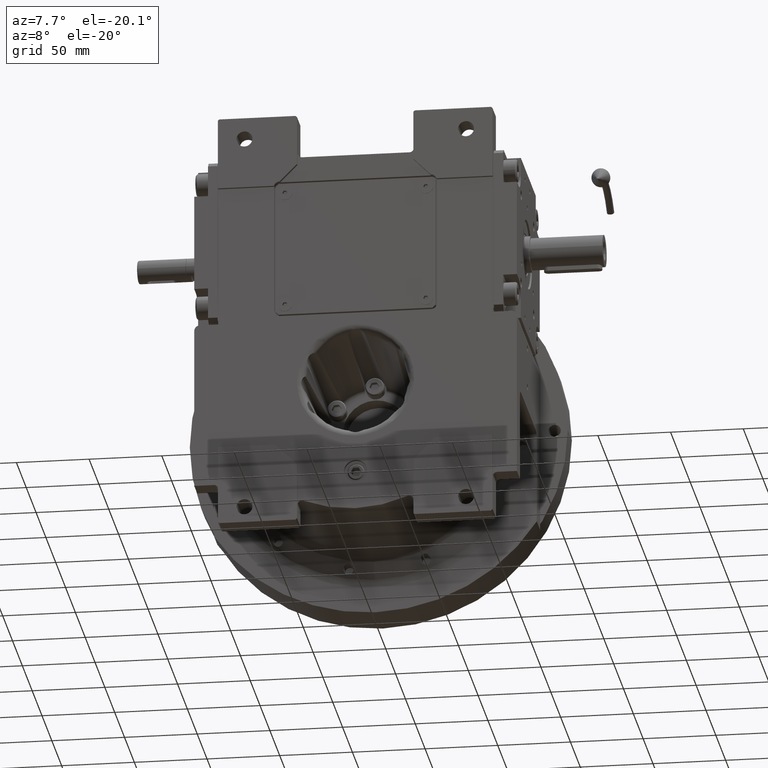
[diagram: clean part render]
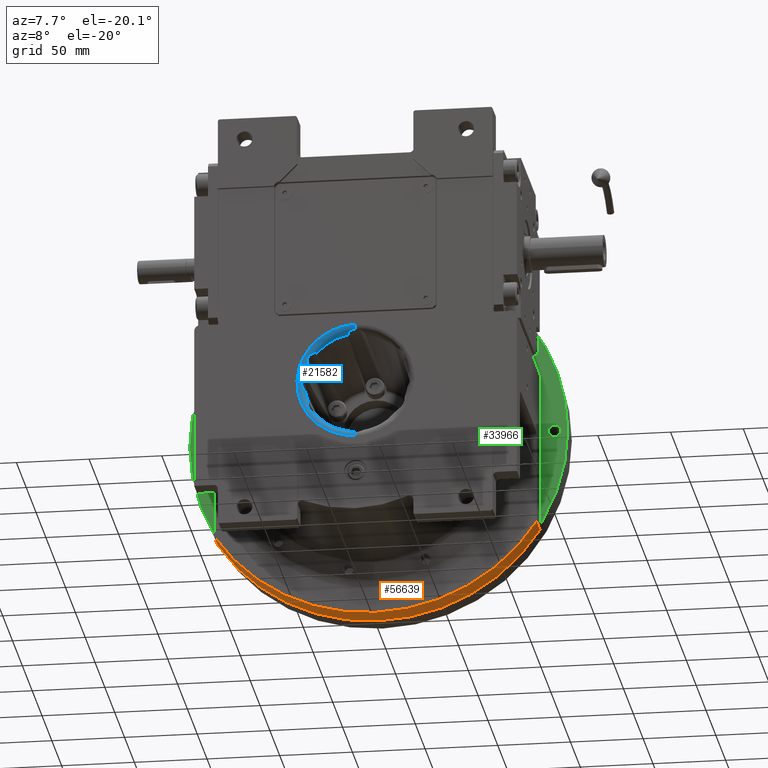
[diagram: same view with three faces highlighted in distinct colors, each labeled with its STEP entity id]
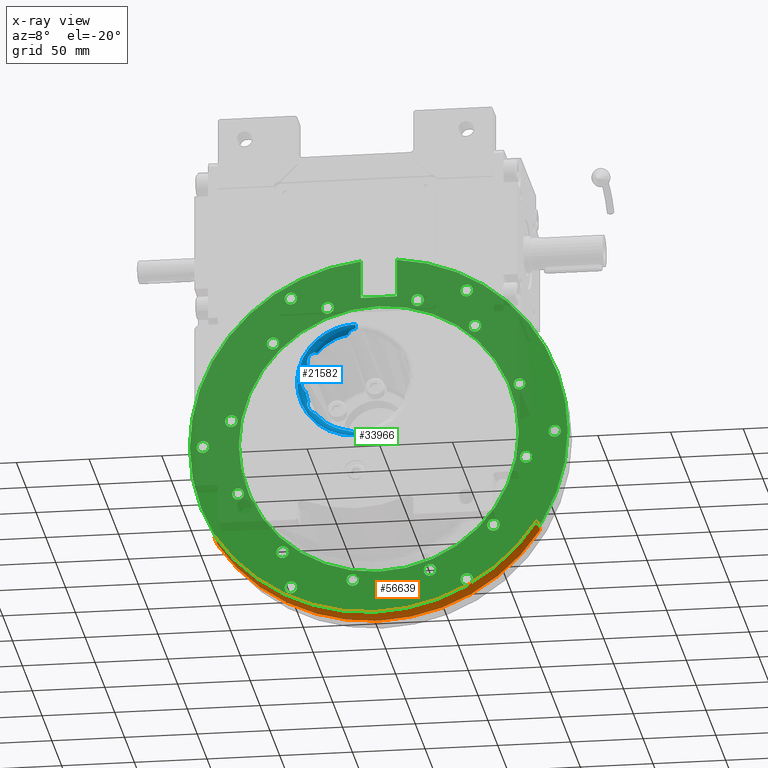
[diagram: x-ray of the same camera — body ghosted, the three highlighted faces saturated]
A machine part, auxiliary view with three faces highlighted in distinct colors.
The next image is the same camera in x-ray (body ghosted, the three faces saturated) — at least one of them is partly hidden behind the body in this view.
Their STEP definitions:

[orange] entity #56639 — the highlighted cylindrical surface (partial cylindrical patch) has radius 132 mm, axis along (0, -1, 0).
#91 = VERTEX_POINT ( 'NONE', #69534 ) ;
#1127 = DIRECTION ( 'NONE',  ( 0.000000000000000000, 1.000000000000000000, 0.000000000000000000 ) ) ;
#1698 = FACE_OUTER_BOUND ( 'NONE', #44948, .T. ) ;
#3055 = CARTESIAN_POINT ( 'NONE',  ( 7.105427357600998703E-15, 64.50000000000000000, 0.000000000000000000 ) ) ;
#6837 = CARTESIAN_POINT ( 'NONE',  ( -111.0000000000000000, 47.50000000000000000, -71.43528539874399996 ) ) ;
#7763 = DIRECTION ( 'NONE',  ( 1.000000000000000000, 0.000000000000000000, 0.000000000000000000 ) ) ;
#8566 = CARTESIAN_POINT ( 'NONE',  ( 111.0000000000000000, 64.50000000000000000, -71.43528539874399996 ) ) ;
#9477 = DIRECTION ( 'NONE',  ( 0.000000000000000000, 1.000000000000000000, 0.000000000000000000 ) ) ;
#12162 = DIRECTION ( 'NONE',  ( 0.8409090909090902732, 0.000000000000000000, -0.5411764045359401809 ) ) ;
#12979 = AXIS2_PLACEMENT_3D ( 'NONE', #55765, #34263, #7763 ) ;
#17445 = CYLINDRICAL_SURFACE ( 'NONE', #12979, 132.0000000000000000 ) ;
#17769 = ORIENTED_EDGE ( 'NONE', *, *, #37549, .F. ) ;
#19420 = CIRCLE ( 'NONE', #21736, 132.0000000000000853 ) ;
#20254 = ORIENTED_EDGE ( 'NONE', *, *, #54606, .T. ) ;
#21736 = AXIS2_PLACEMENT_3D ( 'NONE', #3055, #9477, #24921 ) ;
#23345 = LINE ( 'NONE', #6837, #34669 ) ;
#24921 = DIRECTION ( 'NONE',  ( 0.8409090909090906063, 0.000000000000000000, -0.5411764045359397368 ) ) ;
#25558 = VERTEX_POINT ( 'NONE', #29761 ) ;
#25790 = DIRECTION ( 'NONE',  ( 0.000000000000000000, 1.000000000000000000, 8.359326303060000099E-16 ) ) ;
#29761 = CARTESIAN_POINT ( 'NONE',  ( -111.0000000000000000, 47.50000000000000000, -71.43528539874399996 ) ) ;
#31294 = EDGE_CURVE ( 'NONE', #41841, #62622, #64442, .T. ) ;
#34263 = DIRECTION ( 'NONE',  ( 0.000000000000000000, -1.000000000000000000, 0.000000000000000000 ) ) ;
#34669 = VECTOR ( 'NONE', #1127, 1000.000000000000000 ) ;
#37549 = EDGE_CURVE ( 'NONE', #62622, #91, #19420, .T. ) ;
#41841 = VERTEX_POINT ( 'NONE', #67605 ) ;
#43809 = ORIENTED_EDGE ( 'NONE', *, *, #31294, .F. ) ;
#44948 = EDGE_LOOP ( 'NONE', ( #20254, #17769, #43809, #57867 ) ) ;
#49524 = CIRCLE ( 'NONE', #58691, 131.9999999999999716 ) ;
#54606 = EDGE_CURVE ( 'NONE', #25558, #91, #23345, .T. ) ;
#55765 = CARTESIAN_POINT ( 'NONE',  ( -4.517455316885850268E-28, -53.50000000000000000, 0.000000000000000000 ) ) ;
#56639 = ADVANCED_FACE ( 'NONE', ( #1698 ), #17445, .T. ) ;
#57867 = ORIENTED_EDGE ( 'NONE', *, *, #70194, .T. ) ;
#58691 = AXIS2_PLACEMENT_3D ( 'NONE', #61583, #65922, #12162 ) ;
#59044 = VECTOR ( 'NONE', #25790, 1000.000000000000000 ) ;
#61583 = CARTESIAN_POINT ( 'NONE',  ( 0.000000000000000000, 47.50000000000000000, 4.263256414560599853E-14 ) ) ;
#62622 = VERTEX_POINT ( 'NONE', #8566 ) ;
#63383 = CARTESIAN_POINT ( 'NONE',  ( 111.0000000000000000, 47.50000000000000000, -71.43528539874399996 ) ) ;
#64442 = LINE ( 'NONE', #63383, #59044 ) ;
#65922 = DIRECTION ( 'NONE',  ( 0.000000000000000000, 1.000000000000000000, 0.000000000000000000 ) ) ;
#67605 = CARTESIAN_POINT ( 'NONE',  ( 111.0000000000000000, 47.50000000000000000, -71.43528539874399996 ) ) ;
#69534 = CARTESIAN_POINT ( 'NONE',  ( -111.0000000000000000, 64.50000000000000000, -71.43528539874399996 ) ) ;
#70194 = EDGE_CURVE ( 'NONE', #41841, #25558, #49524, .T. ) ;

[blue] entity #21582 — the highlighted toroidal blend (fillet) surface has major radius 40.3096 mm and minor (blend) radius 5 mm.
#65 = CARTESIAN_POINT ( 'NONE',  ( -1.264761546777279996E-10, -53.50000000000000000, 40.30959420574835406 ) ) ;
#93 = DIRECTION ( 'NONE',  ( -1.000000000000000000, 1.823235189932914908E-09, -1.248917852221759926E-10 ) ) ;
#702 = CARTESIAN_POINT ( 'NONE',  ( -2.019194410547934471, -52.47597893397735191, -37.22310471339797999 ) ) ;
#981 = CARTESIAN_POINT ( 'NONE',  ( -34.84639029672330679, -48.69402850002909844, -5.723853692384699876 ) ) ;
#1046 = EDGE_CURVE ( 'NONE', #10283, #34398, #11736, .T. ) ;
#1049 = CARTESIAN_POINT ( 'NONE',  ( -1.221830501721160589, -52.58184760362785681, -37.40229286780578377 ) ) ;
#1323 = CARTESIAN_POINT ( 'NONE',  ( -35.54621144814458944, -50.88097923029396696, -5.053572992496665250 ) ) ;
#1362 = CARTESIAN_POINT ( 'NONE',  ( -31.30983067032020628, -52.49528704351373420, -20.27896254745621363 ) ) ;
#1692 = CARTESIAN_POINT ( 'NONE',  ( -37.19850839716566071, -52.46080346388567506, -2.105193219096709534 ) ) ;
#2082 = CARTESIAN_POINT ( 'NONE',  ( -29.53221175524831565, -51.84334611511910396, -21.60566600594648889 ) ) ;
#2286 = CARTESIAN_POINT ( 'NONE',  ( -5.387433122653976447, -50.25629916346959192, 35.21784468956284542 ) ) ;
#2454 = CARTESIAN_POINT ( 'NONE',  ( -35.59153589107383908, -50.93297691739986988, 4.999542714260904575 ) ) ;
#2631 = CARTESIAN_POINT ( 'NONE',  ( -5.660053882841262762, -49.38902629021723101, 34.92249272575195818 ) ) ;
#2780 = CARTESIAN_POINT ( 'NONE',  ( -28.15008051919111765, -50.73773405834930372, -22.17961611171003611 ) ) ;
#2821 = CARTESIAN_POINT ( 'NONE',  ( -37.37171492615146207, -52.56446644681851410, 1.393794187946060914 ) ) ;
#2961 = CIRCLE ( 'NONE', #42990, 35.31336033009879571 ) ;
#2996 = CARTESIAN_POINT ( 'NONE',  ( -5.337701821182674777, -50.36790029762664034, 35.26884467610457108 ) ) ;
#3171 = CARTESIAN_POINT ( 'NONE',  ( -37.47512975712456296, -52.62272417589142748, 0.7071437189113506383 ) ) ;
#3183 = CARTESIAN_POINT ( 'NONE',  ( -33.48066850809050266, -51.94653394036819805, 15.00006573923463371 ) ) ;
#3517 = CARTESIAN_POINT ( 'NONE',  ( -34.87905876915444736, -49.40060510385536219, 5.694260973935433512 ) ) ;
#3530 = CARTESIAN_POINT ( 'NONE',  ( -33.48019679877880606, -51.91098471385154767, 14.91874690794370295 ) ) ;
#3661 = ORIENTED_EDGE ( 'NONE', *, *, #62290, .F. ) ;
#3893 = CARTESIAN_POINT ( 'NONE',  ( -33.04683298299452332, -49.06300647993788999, 12.48810653588035713 ) ) ;
#4149 = CARTESIAN_POINT ( 'NONE',  ( -33.48065902542229821, -51.94651877671636697, -15.00005041233815284 ) ) ;
#4156 = VERTEX_POINT ( 'NONE', #34772 ) ;
#4236 = CARTESIAN_POINT ( 'NONE',  ( -30.33763547014608619, -52.22522622448745722, 21.12351240241823191 ) ) ;
#4448 = VERTEX_POINT ( 'NONE', #48012 ) ;
#4542 = CARTESIAN_POINT ( 'NONE',  ( -33.43870015162008258, -52.29160688257576339, -15.95255991965648157 ) ) ;
#4839 = CARTESIAN_POINT ( 'NONE',  ( -33.47464488507939251, -51.80150128521189856, -14.68514706450364748 ) ) ;
#5500 =( BOUNDED_CURVE ( )  B_SPLINE_CURVE ( 3, ( #27626, #49117, #6480, #65 ),
 .UNSPECIFIED., .F., .F. ) 
 B_SPLINE_CURVE_WITH_KNOTS ( ( 4, 4 ),
 ( 1.432582689913126872, 4.574174019572492256 ),
 .UNSPECIFIED. ) 
 CURVE ( )  GEOMETRIC_REPRESENTATION_ITEM ( )  RATIONAL_B_SPLINE_CURVE ( ( 1.000000000000000000, 0.3333337746434759108, 0.3333337746434759108, 1.000000000000000000 ) ) 
 REPRESENTATION_ITEM ( '' )  );
#5689 = DIRECTION ( 'NONE',  ( -0.1620874830058605665, 0.000000000000000000, -0.9867763920224403851 ) ) ;
#5715 = CARTESIAN_POINT ( 'NONE',  ( -5.136070342685880696, -50.73290559809645117, -35.46567060435182839 ) ) ;
#6199 = CIRCLE ( 'NONE', #46223, 35.31336033009884545 ) ;
#6351 = CARTESIAN_POINT ( 'NONE',  ( -35.38985876883371873, -50.60022425254692990, -5.215066509444947762 ) ) ;
#6480 = CARTESIAN_POINT ( 'NONE',  ( -80.61913312124997333, -53.49999999999999289, 40.30955543265923069 ) ) ;
#6666 = CARTESIAN_POINT ( 'NONE',  ( -33.48065902542229821, -51.94651877671636697, -15.00005041233815284 ) ) ;
#6694 = CARTESIAN_POINT ( 'NONE',  ( -36.05737927987627955, -51.52631744755399268, -4.426109131331852353 ) ) ;
#6761 = CARTESIAN_POINT ( 'NONE',  ( -5.185284180731847492, -50.65179097773085459, -35.41871935916807246 ) ) ;
#6937 = CARTESIAN_POINT ( 'NONE',  ( -3.629204774560569113, -52.01591010110095681, 36.57070120480594966 ) ) ;
#7087 = CARTESIAN_POINT ( 'NONE',  ( -29.83633626812550688, -51.99876485710613139, -21.43405917139887507 ) ) ;
#7115 = CARTESIAN_POINT ( 'NONE',  ( -5.194316907912090109, -50.63645387683877885, -35.41003222769442971 ) ) ;
#7120 = CARTESIAN_POINT ( 'NONE',  ( -32.98500176666255612, -52.58821805067566402, 17.69522100607603576 ) ) ;
#7408 = CARTESIAN_POINT ( 'NONE',  ( -37.20514037371744820, -52.46491046812580805, -2.082363054648559864 ) ) ;
#7658 = CARTESIAN_POINT ( 'NONE',  ( -1.402137547244156845, -52.58474267382023015, 37.39942789236261689 ) ) ;
#8137 = CARTESIAN_POINT ( 'NONE',  ( -29.61160658843931515, -51.88574788270577187, -21.56233139341213345 ) ) ;
#8176 = CARTESIAN_POINT ( 'NONE',  ( -36.71685402489272576, -52.12829075709934301, 3.341139710935104201 ) ) ;
#8178 = CARTESIAN_POINT ( 'NONE',  ( -29.37057729870343081, -51.75232895819141277, 21.69044457255832015 ) ) ;
#8351 = CARTESIAN_POINT ( 'NONE',  ( -4.136350574445229356, -51.73019518094505287, 36.25730900795129941 ) ) ;
#8360 = ORIENTED_EDGE ( 'NONE', *, *, #59780, .T. ) ;
#8893 = CARTESIAN_POINT ( 'NONE',  ( -37.22268275660455572, -52.47571902507378638, 2.020679979797129100 ) ) ;
#8895 = CARTESIAN_POINT ( 'NONE',  ( -28.35037556066065534, -50.97055849722179488, 22.11835270962255962 ) ) ;
#9235 = CARTESIAN_POINT ( 'NONE',  ( -36.44970332882100905, -51.90707011274353988, 3.827281497565597324 ) ) ;
#9558 = CARTESIAN_POINT ( 'NONE',  ( -33.21885165357554826, -52.49420048062674482, -16.96874070924613775 ) ) ;
#9924 = CARTESIAN_POINT ( 'NONE',  ( -2.273736754432320090E-13, -48.69402850002909844, -2.664535259100374750E-14 ) ) ;
#10283 = VERTEX_POINT ( 'NONE', #58180 ) ;
#10566 = CARTESIAN_POINT ( 'NONE',  ( -33.03978607334229878, -48.69402850002909844, -12.46619244321105846 ) ) ;
#11226 = CARTESIAN_POINT ( 'NONE',  ( -34.84639029672324995, -48.69402850002909844, 5.723853692384790470 ) ) ;
#11255 = ORIENTED_EDGE ( 'NONE', *, *, #18366, .T. ) ;
#11469 = DIRECTION ( 'NONE',  ( 4.918457069522380007E-18, -1.000000000000000000, 1.317897701722361855E-19 ) ) ;
#11490 = CARTESIAN_POINT ( 'NONE',  ( -33.03978607334229878, -48.69402850002909844, -12.46619244321105846 ) ) ;
#11736 = B_SPLINE_CURVE_WITH_KNOTS ( 'NONE', 3,
 ( #52243, #25033, #3171, #57964, #2821, #13887, #36093, #20012, #46844, #8893, #24686, #51883, #41823, #63696, #8176, #19640, #14624, #41444, #9235, #46502, #47572, #35725, #56897, #57605, #36444, #2454, #63335, #14261, #30744, #58310, #52585, #29682, #3517, #31079 ),
 .UNSPECIFIED., .F., .F.,
 ( 4, 2, 2, 1, 1, 2, 2, 2, 2, 1, 1, 2, 2, 2, 2, 1, 1, 2, 2, 4 ),
 ( 0.5000005676679070143, 0.5625004967094242581, 0.5937504612301829354, 0.6093754434905622741, 0.6171879346207520545, 0.6210941801858467226, 0.6250004257509412797, 0.6875003547924596337, 0.7187503193132186441, 0.7343753015735978718, 0.7421877927037874301, 0.7460940382688822092, 0.7500002838339769884, 0.8125002128754843511, 0.8437501773962379215, 0.8593751596566143736, 0.8671876507868030437, 0.8710938963518970457, 0.8750001419169910477, 1.000000000000000000 ),
 .UNSPECIFIED. ) ;
#11781 = CARTESIAN_POINT ( 'NONE',  ( -4.432578927850743256, -51.53484705337476868, -36.05731220112073032 ) ) ;
#12143 = CARTESIAN_POINT ( 'NONE',  ( -4.180282007061962624, -51.71590935630536734, -36.23605893272691247 ) ) ;
#12416 = CARTESIAN_POINT ( 'NONE',  ( -37.18576368827346812, -52.45287621578015802, -2.148322745949382995 ) ) ;
#12456 = CARTESIAN_POINT ( 'NONE',  ( -31.82140708149247388, -52.58895953837874515, -19.71265100756068733 ) ) ;
#12483 = CARTESIAN_POINT ( 'NONE',  ( -1.977912365096969660, -52.48296653042543625, -37.23451985414305199 ) ) ;
#12487 = CARTESIAN_POINT ( 'NONE',  ( -33.21886480365199645, -52.49421037881351282, 16.96874346949645940 ) ) ;
#12681 = B_SPLINE_CURVE_WITH_KNOTS ( 'NONE', 3,
 ( #55481, #18581, #66581, #40392, #39695, #34338, #35041, #12487, #17512, #24320, #7120, #61218, #46149, #68010, #68712, #53300, #19642, #63338, #25742, #14626, #20370, #25035, #4236, #24688, #36446, #19292, #57245, #14263, #69771, #8178, #47925, #41097, #69430, #8895, #41448, #36095, #46847, #63698, #62618, #13552, #47573, #52245, #52934 ),
 .UNSPECIFIED., .F., .F.,
 ( 4, 2, 2, 2, 2, 2, 2, 2, 2, 2, 2, 2, 2, 2, 1, 2, 2, 2, 2, 2, 2, 4 ),
 ( 0.2612241804115957855, 0.3535711578601466454, 0.3651145300412157457, 0.3766579022222847906, 0.3997446465844232133, 0.4459181353086996147, 0.4920916240329760161, 0.5382651127572524175, 0.5844386014815288188, 0.6075253458436666865, 0.6306120902058045541, 0.7229590676543573569, 0.7460458120164954465, 0.7518174981070298024, 0.7575891841975643803, 0.7691325563786326480, 0.8153060451029053857, 0.8614795338271780123, 0.8730229060082467241, 0.8845662781893153248, 0.9076530225514521932, 1.000000000000000000 ),
 .UNSPECIFIED. ) ;
#12709 = B_SPLINE_CURVE_WITH_KNOTS ( 'NONE', 3,
 ( #51354, #23794, #2631, #23442, #13021, #2286, #2996, #29858, #18059, #40205, #50632, #62081, #35556, #19471, #40924, #34152, #8351, #52068, #24863, #30218, #56723, #6937, #13381, #18403, #13722, #24138, #45618, #34863, #46676, #40566, #67475, #7658, #68181, #62788 ),
 .UNSPECIFIED., .F., .F.,
 ( 4, 2, 2, 1, 1, 2, 2, 2, 2, 1, 1, 2, 2, 2, 2, 1, 1, 2, 2, 4 ),
 ( 0.000000000000000000, 0.1250000000000309752, 0.1875000000000467681, 0.2187500000000546507, 0.2343750000000596745, 0.2421875000000612010, 0.2500000000000627276, 0.3750000000000703881, 0.4375000000000743294, 0.4687500000000756617, 0.4843750000000769385, 0.4921875000000769385, 0.5000000000000769385, 0.6250000000000598410, 0.6875000000000511813, 0.7187500000000471845, 0.7343750000000451861, 0.7421875000000444089, 0.7500000000000435207, 1.000000000000000000 ),
 .UNSPECIFIED. ) ;
#12833 = EDGE_CURVE ( 'NONE', #62540, #37045, #44893, .T. ) ;
#13021 = CARTESIAN_POINT ( 'NONE',  ( -5.479718036409392035, -50.02922342849667103, 35.12163865967801257 ) ) ;
#13126 = CARTESIAN_POINT ( 'NONE',  ( -34.92230038515041457, -49.38786160803886105, -5.660090759269483129 ) ) ;
#13381 = CARTESIAN_POINT ( 'NONE',  ( -3.345691109868505819, -52.13401398793416774, 36.72146529940926030 ) ) ;
#13450 = CIRCLE ( 'NONE', #26057, 5.000000000000087930 ) ;
#13515 = CARTESIAN_POINT ( 'NONE',  ( -29.10610765022687119, -51.59314180384637183, -21.82229256885193180 ) ) ;
#13552 = CARTESIAN_POINT ( 'NONE',  ( -27.81309122354442920, -50.27051233547238240, 22.27280259028129095 ) ) ;
#13722 = CARTESIAN_POINT ( 'NONE',  ( -2.729881623480161501, -52.32472363895671208, 36.98829363977125695 ) ) ;
#13846 = B_SPLINE_CURVE_WITH_KNOTS ( 'NONE', 3,
 ( #58673, #3893, #30754, #26101, #25384, #47585, #30408, #35395, #52254, #69081, #41462, #53313, #14272, #36105, #57256, #41108, #20024, #57975, #20380, #3530, #25754, #3183 ),
 .UNSPECIFIED., .F., .F.,
 ( 4, 2, 2, 1, 2, 2, 2, 2, 1, 2, 2, 4 ),
 ( 0.000000000000000000, 0.06530604510289926556, 0.09795906765434832242, 0.1142855789300729064, 0.1224488345679348167, 0.1306120902057967270, 0.1959181353086967559, 0.2285711578601466176, 0.2448976691358714652, 0.2489792969548025037, 0.2530609247737335421, 0.2612241804115957855 ),
 .UNSPECIFIED. ) ;
#13887 = CARTESIAN_POINT ( 'NONE',  ( -37.31771862321354405, -52.53290910168925620, 1.646514318458163206 ) ) ;
#14261 = CARTESIAN_POINT ( 'NONE',  ( -35.46445849641784775, -50.73085163937124520, 5.137289340209725275 ) ) ;
#14263 = CARTESIAN_POINT ( 'NONE',  ( -29.53217472947199340, -51.84332695767740518, 21.60568760061989835 ) ) ;
#14272 = CARTESIAN_POINT ( 'NONE',  ( -33.43721194407241626, -51.51252245795610207, 14.17352376834074690 ) ) ;
#14515 = ORIENTED_EDGE ( 'NONE', *, *, #54987, .T. ) ;
#14530 = CARTESIAN_POINT ( 'NONE',  ( -33.07617599617991999, -49.41862454316165554, -12.56596163033740332 ) ) ;
#14624 = CARTESIAN_POINT ( 'NONE',  ( -36.54770197314466174, -51.99170685750559073, 3.658733280678785782 ) ) ;
#14626 = CARTESIAN_POINT ( 'NONE',  ( -31.30987083567017493, -52.49528762525423531, 20.27890224730805357 ) ) ;
#15237 = CARTESIAN_POINT ( 'NONE',  ( -33.45304754598910080, -51.61044702623417635, -14.33077991663738615 ) ) ;
#15358 = B_SPLINE_CURVE_WITH_KNOTS ( 'NONE', 3,
 ( #61563, #23255, #55475, #1049, #45449, #66241, #44392, #17880, #12483, #702, #66576, #56177, #17506, #55828, #66953, #27925, #22900, #39339, #61211, #54775, #49386, #12143, #11781, #17161, #34333, #22560, #33277, #5715, #38973, #6761, #7115, #23617, #50104, #60853 ),
 .UNSPECIFIED., .F., .F.,
 ( 4, 2, 2, 1, 1, 2, 2, 2, 2, 1, 1, 2, 2, 2, 2, 1, 1, 2, 2, 4 ),
 ( 0.000000000000000000, 0.1250000000000070499, 0.1875000000000105749, 0.2187500000000123235, 0.2343750000000133504, 0.2421875000000140166, 0.2500000000000147105, 0.3750000000000313638, 0.4375000000000402456, 0.4687500000000444644, 0.4843750000000465739, 0.4921875000000475731, 0.5000000000000486278, 0.6250000000000648370, 0.6875000000000721645, 0.7187500000000759393, 0.7343750000000769385, 0.7421875000000758282, 0.7500000000000747180, 1.000000000000000000 ),
 .UNSPECIFIED. ) ;
#15600 = CARTESIAN_POINT ( 'NONE',  ( -33.26639435941452660, -50.65332744764304351, -13.21983680953401041 ) ) ;
#15948 = CARTESIAN_POINT ( 'NONE',  ( -33.04683412989724900, -49.06316082897400577, -12.48812047595958497 ) ) ;
#16819 = EDGE_CURVE ( 'NONE', #4156, #26136, #6199, .T. ) ;
#17161 = CARTESIAN_POINT ( 'NONE',  ( -4.759485884201080985, -51.22257027137430185, -35.79913352070200006 ) ) ;
#17506 = CARTESIAN_POINT ( 'NONE',  ( -2.734876952242926595, -52.32990321998264704, -36.99229463609380986 ) ) ;
#17512 = CARTESIAN_POINT ( 'NONE',  ( -33.18468010030839110, -52.51304639989410816, 17.09071938583201344 ) ) ;
#17880 = CARTESIAN_POINT ( 'NONE',  ( -1.915896034671822123, -52.49325482596480441, -37.25139006299717437 ) ) ;
#18059 = CARTESIAN_POINT ( 'NONE',  ( -5.244244369721164034, -50.54810657214439829, 35.36152057421318062 ) ) ;
#18160 = CARTESIAN_POINT ( 'NONE',  ( -36.92381443595463253, -52.28035557930471100, -2.888882551871136073 ) ) ;
#18366 = EDGE_CURVE ( 'NONE', #26136, #53337, #12709, .T. ) ;
#18403 = CARTESIAN_POINT ( 'NONE',  ( -2.887888764013675225, -52.28084012361778576, 36.92445607941755981 ) ) ;
#18503 = CARTESIAN_POINT ( 'NONE',  ( -37.16640983572779078, -52.44078884913686522, -2.212772513856393175 ) ) ;
#18581 = CARTESIAN_POINT ( 'NONE',  ( -33.48087625289132774, -52.14504185209366938, 15.46143532282157373 ) ) ;
#18903 = CARTESIAN_POINT ( 'NONE',  ( -27.99487110530977318, -50.53926129247206944, -22.22432816892212415 ) ) ;
#19292 = CARTESIAN_POINT ( 'NONE',  ( -29.61155332908295890, -51.88571261543106772, 21.56234932649866920 ) ) ;
#19471 = CARTESIAN_POINT ( 'NONE',  ( -4.541814814010053603, -51.43050647628417238, 35.97103802573684561 ) ) ;
#19640 = CARTESIAN_POINT ( 'NONE',  ( -36.60484686924163356, -52.03864515488902498, 3.554194316099296369 ) ) ;
#19642 = CARTESIAN_POINT ( 'NONE',  ( -31.82166990027069531, -52.58899155538596659, 19.71231372235984125 ) ) ;
#19905 = DIRECTION ( 'NONE',  ( -0.7735296818432539911, 0.000000000000000000, 0.6337600739297750696 ) ) ;
#20012 = CARTESIAN_POINT ( 'NONE',  ( -37.25098423368621781, -52.49300947963001818, 1.917445575785094780 ) ) ;
#20024 = CARTESIAN_POINT ( 'NONE',  ( -33.47774609865103201, -51.85368734645749100, 14.79462638612601744 ) ) ;
#20370 = CARTESIAN_POINT ( 'NONE',  ( -31.22107025168451244, -52.47537369524913942, 20.36714077585923732 ) ) ;
#20380 = CARTESIAN_POINT ( 'NONE',  ( -33.47920624286795999, -51.88341688619220093, 14.85827326807468651 ) ) ;
#20976 = CARTESIAN_POINT ( 'NONE',  ( -33.48053227737032955, -51.92890995106616003, -14.95925558971413771 ) ) ;
#21582 = ADVANCED_FACE ( 'NONE', ( #44768 ), #43801, .T. ) ;
#21944 = DIRECTION ( 'NONE',  ( -1.823235189940330996E-09, -1.000000000000000000, 5.937889069329574197E-11 ) ) ;
#22560 = CARTESIAN_POINT ( 'NONE',  ( -4.998169086091472479, -50.93486924981419151, -35.59279415036716188 ) ) ;
#22832 = CARTESIAN_POINT ( 'NONE',  ( -36.18958736087866868, -51.66286048789632446, -4.236484116431659785 ) ) ;
#22900 = CARTESIAN_POINT ( 'NONE',  ( -3.657082585409805908, -51.99282415957538461, -36.54896482573982297 ) ) ;
#23179 = CARTESIAN_POINT ( 'NONE',  ( -36.72054412596219919, -52.13325453623166084, -3.346850531325738842 ) ) ;
#23224 = CARTESIAN_POINT ( 'NONE',  ( -28.35016232163347638, -50.97036712872989028, -22.11845893549994813 ) ) ;
#23255 = CARTESIAN_POINT ( 'NONE',  ( -0.3553892396859897329, -52.63601862953336763, -37.50008358898191574 ) ) ;
#23442 = CARTESIAN_POINT ( 'NONE',  ( -5.531674865055950185, -49.87266461318392174, 35.06522989247702071 ) ) ;
#23586 = CARTESIAN_POINT ( 'NONE',  ( -32.66951811604604217, -52.63282135041917087, -18.40311764437244335 ) ) ;
#23617 = CARTESIAN_POINT ( 'NONE',  ( -5.528909143604688659, -50.05637871797110705, -35.08652819491122443 ) ) ;
#23794 = CARTESIAN_POINT ( 'NONE',  ( -5.709080662314408805, -49.04780223733666844, 34.86273980539187534 ) ) ;
#23895 = CARTESIAN_POINT ( 'NONE',  ( -37.39900705305662143, -52.58451861614958034, -1.404435147106016357 ) ) ;
#24138 = CARTESIAN_POINT ( 'NONE',  ( -2.484828966678119588, -52.38371084342134054, 37.07727184074595073 ) ) ;
#24320 = CARTESIAN_POINT ( 'NONE',  ( -33.07254936853102834, -52.56320848893034992, 17.45485700321354017 ) ) ;
#24650 = CARTESIAN_POINT ( 'NONE',  ( -29.73623849775449912, -51.95039087709809422, -21.49279114163323001 ) ) ;
#24686 = CARTESIAN_POINT ( 'NONE',  ( -37.21721553879917366, -52.47236002905662389, 2.040129607821971280 ) ) ;
#24688 = CARTESIAN_POINT ( 'NONE',  ( -29.83647181322517028, -51.99880890157818669, 21.43394373490555083 ) ) ;
#24863 = CARTESIAN_POINT ( 'NONE',  ( -3.962931184496637727, -51.83334785138393386, 36.36752667266588901 ) ) ;
#25033 = CARTESIAN_POINT ( 'NONE',  ( -37.50001804720012188, -52.63597410645154895, 0.3561209110706364256 ) ) ;
#25035 = CARTESIAN_POINT ( 'NONE',  ( -30.73910345683955825, -52.35670050589373403, 20.82169795247247990 ) ) ;
#25276 = CARTESIAN_POINT ( 'NONE',  ( 1.065814103640149963E-14, -48.69402850002909844, 0.000000000000000000 ) ) ;
#25323 = DIRECTION ( 'NONE',  ( -0.9867763920224401630, 0.000000000000000000, 0.1620874830058615379 ) ) ;
#25384 = CARTESIAN_POINT ( 'NONE',  ( -33.16420768629460269, -50.08288911404687127, 12.84237103832229643 ) ) ;
#25395 = AXIS2_PLACEMENT_3D ( 'NONE', #9924, #27469, #49292 ) ;
#25702 = CARTESIAN_POINT ( 'NONE',  ( -33.28157461314806653, -52.45048440668971779, -16.71832979067082192 ) ) ;
#25742 = CARTESIAN_POINT ( 'NONE',  ( -31.48546756048025586, -52.53143582435062342, 20.09574830436850590 ) ) ;
#25754 = CARTESIAN_POINT ( 'NONE',  ( -33.48054826417087071, -51.92894447341314645, 14.95929972303161115 ) ) ;
#26003 = CARTESIAN_POINT ( 'NONE',  ( -33.13981055533922415, -49.92077090289667751, -12.76320821760578106 ) ) ;
#26056 = CARTESIAN_POINT ( 'NONE',  ( -33.26553695913442255, -52.46253985258677233, -16.78490719616772253 ) ) ;
#26057 = AXIS2_PLACEMENT_3D ( 'NONE', #52358, #62376, #30149 ) ;
#26101 = CARTESIAN_POINT ( 'NONE',  ( -33.13976139157235679, -49.92059330197461975, 12.76318837579454168 ) ) ;
#26136 = VERTEX_POINT ( 'NONE', #47922 ) ;
#26394 = CARTESIAN_POINT ( 'NONE',  ( -33.31070689276531027, -52.42588835643203282, -16.58979957195580113 ) ) ;
#26701 = CARTESIAN_POINT ( 'NONE',  ( -33.32681476171606505, -50.95814186081344133, -13.46893414121728583 ) ) ;
#27289 = EDGE_CURVE ( 'NONE', #32492, #48710, #13846, .T. ) ;
#27469 = DIRECTION ( 'NONE',  ( 0.000000000000000000, 1.000000000000000000, 0.000000000000000000 ) ) ;
#27626 = CARTESIAN_POINT ( 'NONE',  ( 1.264666971694413862E-10, -53.50000000000000000, -40.30959420574829721 ) ) ;
#27724 = B_SPLINE_CURVE_WITH_KNOTS ( 'NONE', 3,
 ( #981, #62542, #13126, #67233, #56107, #44659, #67930, #55406, #61836, #61494, #6351, #1323, #28211, #50035, #6694, #22832, #33910, #50745, #56465, #50384, #28898, #28557, #23179, #18160, #66882, #39622, #39961, #18503, #12416, #1692, #7408, #23895, #45717, #67573 ),
 .UNSPECIFIED., .F., .F.,
 ( 4, 2, 2, 1, 1, 2, 2, 2, 2, 1, 1, 2, 2, 2, 2, 1, 1, 2, 2, 4 ),
 ( 0.000000000000000000, 0.06250007095847674721, 0.09375010643771551633, 0.1093751241773345956, 0.1171876330471449124, 0.1210938874820498279, 0.1250001419169547712, 0.1875002128754405528, 0.2187502483546837073, 0.2343752660943053401, 0.2421877749641161426, 0.2460940293990217520, 0.2500002838339273614, 0.3125003547924226077, 0.3437503902716703141, 0.3593754080112941951, 0.3671879168811062466, 0.3710941713160120781, 0.3750004257509179095, 0.5000005676679070143 ),
 .UNSPECIFIED. ) ;
#27925 = CARTESIAN_POINT ( 'NONE',  ( -3.552697779826215818, -52.03964563101078511, -36.60600020602930726 ) ) ;
#28193 = VERTEX_POINT ( 'NONE', #35568 ) ;
#28211 = CARTESIAN_POINT ( 'NONE',  ( -35.71156677534126800, -51.11644979083904161, -4.870261559791985384 ) ) ;
#28557 = CARTESIAN_POINT ( 'NONE',  ( -36.56951582499008424, -52.01488440820852333, -3.630697685061499147 ) ) ;
#28599 = CARTESIAN_POINT ( 'NONE',  ( -27.88221310447731582, -50.37970870707397353, -22.25503616438187393 ) ) ;
#28898 = CARTESIAN_POINT ( 'NONE',  ( -36.40000266279696461, -51.86281982276506852, -3.909829758493076568 ) ) ;
#28941 = CARTESIAN_POINT ( 'NONE',  ( -31.97949066727202805, -52.60861459975956933, -19.50990255030048459 ) ) ;
#29036 = CARTESIAN_POINT ( 'NONE',  ( -33.03978607334229878, -48.69402850002909844, 12.46619244321112063 ) ) ;
#29309 = CARTESIAN_POINT ( 'NONE',  ( -28.52636104174847986, -51.14089828867632548, -22.05866134412902113 ) ) ;
#29637 = DIRECTION ( 'NONE',  ( 0.000000000000000000, 1.000000000000000000, 0.000000000000000000 ) ) ;
#29682 = CARTESIAN_POINT ( 'NONE',  ( -35.08589548655954360, -50.05446180876408846, 5.529198774539777261 ) ) ;
#29735 = CIRCLE ( 'NONE', #56044, 35.31336033009873887 ) ;
#29858 = CARTESIAN_POINT ( 'NONE',  ( -5.273256697089785838, -50.49458095574485128, 35.33304163518252494 ) ) ;
#30061 = ORIENTED_EDGE ( 'NONE', *, *, #27289, .T. ) ;
#30149 = DIRECTION ( 'NONE',  ( 1.823279159433930648E-09, -1.000000000000000000, -5.938027847207545066E-11 ) ) ;
#30218 = CARTESIAN_POINT ( 'NONE',  ( -3.927364173148061965, -51.85339626484464048, 36.38951893049397768 ) ) ;
#30359 = CARTESIAN_POINT ( 'NONE',  ( -33.32433212886009954, -52.41300609219351969, -16.52581018458113959 ) ) ;
#30408 = CARTESIAN_POINT ( 'NONE',  ( -33.22426399728318813, -50.43316458786623002, 13.05520228204356137 ) ) ;
#30744 = CARTESIAN_POINT ( 'NONE',  ( -35.43621755538709550, -50.68227547495926899, 5.166927914259155763 ) ) ;
#30754 = CARTESIAN_POINT ( 'NONE',  ( -33.07614190768921958, -49.41840807794770996, 12.56593321534894692 ) ) ;
#30980 = CARTESIAN_POINT ( 'NONE',  ( -1.603856535494735125E-09, -52.63596184683439816, 37.50000000000000000 ) ) ;
#31079 = CARTESIAN_POINT ( 'NONE',  ( -34.84639029672324995, -48.69402850002909844, 5.723853692384790470 ) ) ;
#31354 = CARTESIAN_POINT ( 'NONE',  ( -33.47774655512012032, -51.85362284805484023, -14.79448117774270166 ) ) ;
#31624 = ORIENTED_EDGE ( 'NONE', *, *, #16819, .T. ) ;
#31853 = DIRECTION ( 'NONE',  ( 0.000000000000000000, 1.000000000000000000, 0.000000000000000000 ) ) ;
#32492 = VERTEX_POINT ( 'NONE', #29036 ) ;
#33277 = CARTESIAN_POINT ( 'NONE',  ( -5.064238222524459765, -50.84381052462925510, -35.53296774912324452 ) ) ;
#33319 = CARTESIAN_POINT ( 'NONE',  ( 0.000000000000000000, -48.50000000000000000, 2.075601271575409789E-14 ) ) ;
#33692 = EDGE_CURVE ( 'NONE', #34398, #32492, #2961, .T. ) ;
#33750 = ORIENTED_EDGE ( 'NONE', *, *, #1046, .T. ) ;
#33910 = CARTESIAN_POINT ( 'NONE',  ( -36.25584774438354430, -51.72874381555443080, -4.138326285938114246 ) ) ;
#34152 = CARTESIAN_POINT ( 'NONE',  ( -4.234545782348330789, -51.66433971526953428, 36.19103113201781241 ) ) ;
#34302 = CARTESIAN_POINT ( 'NONE',  ( -32.27610797784565477, -52.63304389909050940, -19.08511628725423037 ) ) ;
#34330 = VERTEX_POINT ( 'NONE', #60991 ) ;
#34333 = CARTESIAN_POINT ( 'NONE',  ( -4.859880929579269981, -51.11171319814883418, -35.71475506715714943 ) ) ;
#34338 = CARTESIAN_POINT ( 'NONE',  ( -33.28154941634980446, -52.45048733185246448, 16.71838823758258386 ) ) ;
#34398 = VERTEX_POINT ( 'NONE', #11226 ) ;
#34772 = CARTESIAN_POINT ( 'NONE',  ( -27.31593238095755183, -48.69402850002909844, 22.38019785351225011 ) ) ;
#34863 = CARTESIAN_POINT ( 'NONE',  ( -2.211513715074604924, -52.44106279325023223, 37.16683635482760195 ) ) ;
#35041 = CARTESIAN_POINT ( 'NONE',  ( -33.26548957792709871, -52.46256714566826673, 16.78507972991737773 ) ) ;
#35348 = CARTESIAN_POINT ( 'NONE',  ( -29.58681365607561631, -51.87268377217269233, -21.57599796854194096 ) ) ;
#35395 = CARTESIAN_POINT ( 'NONE',  ( -33.24545701223997440, -50.54520048868605642, 13.13682072576230908 ) ) ;
#35556 = CARTESIAN_POINT ( 'NONE',  ( -4.868713509565538722, -51.11822196152566988, 35.71288034967352587 ) ) ;
#35568 = CARTESIAN_POINT ( 'NONE',  ( 1.264666971694413862E-10, -53.50000000000000000, -40.30959420574829721 ) ) ;
#35689 = CARTESIAN_POINT ( 'NONE',  ( -33.07242516352964401, -52.56323015633553553, -17.45515814673914790 ) ) ;
#35725 = CARTESIAN_POINT ( 'NONE',  ( -36.23459986853348624, -51.71445036787208949, 4.182271700432508510 ) ) ;
#35971 = VERTEX_POINT ( 'NONE', #11490 ) ;
#36054 = CARTESIAN_POINT ( 'NONE',  ( -33.18463355244589508, -52.51304589151576607, -17.09080855748500127 ) ) ;
#36093 = CARTESIAN_POINT ( 'NONE',  ( -37.28858991426233871, -52.51569948671471622, 1.772161780013235211 ) ) ;
#36095 = CARTESIAN_POINT ( 'NONE',  ( -28.11108987820152194, -50.69025118454985801, 22.19116009868342942 ) ) ;
#36105 = CARTESIAN_POINT ( 'NONE',  ( -33.45300411766488224, -51.61031179590137441, 14.33060310003068949 ) ) ;
#36444 = CARTESIAN_POINT ( 'NONE',  ( -35.71345797838820602, -51.10994973858156953, 4.861391692245820906 ) ) ;
#36446 = CARTESIAN_POINT ( 'NONE',  ( -29.73629946629138843, -51.95040457042420456, 21.49272782484388600 ) ) ;
#37045 = VERTEX_POINT ( 'NONE', #6666 ) ;
#37528 = B_SPLINE_CURVE_WITH_KNOTS ( 'NONE', 3,
 ( #4149, #20976, #53909, #63604, #64306, #31354, #4839, #37767, #15237, #42798, #64672, #26701, #15600, #58573, #48544, #70404, #59641, #41731, #26003, #14530, #15948, #10566 ),
 .UNSPECIFIED., .F., .F.,
 ( 4, 2, 2, 1, 2, 2, 2, 2, 1, 2, 2, 4 ),
 ( 0.7387891908882820990, 0.7469520286730227943, 0.7510334475653932529, 0.7551148664577637115, 0.7714405420272458791, 0.8040918931662103253, 0.8693945954441402169, 0.8775574332288816892, 0.8857202710136231616, 0.9020459465831056622, 0.9346972977220708856, 1.000000000000000000 ),
 .UNSPECIFIED. ) ;
#37767 = CARTESIAN_POINT ( 'NONE',  ( -33.46937295990052519, -51.74681481219972312, -14.57904754091818411 ) ) ;
#38973 = CARTESIAN_POINT ( 'NONE',  ( -5.165745639725680682, -50.68437087274132580, -35.43741778940965048 ) ) ;
#39339 = CARTESIAN_POINT ( 'NONE',  ( -3.775365088185350881, -51.93433030989869792, -36.48073606174968830 ) ) ;
#39389 = ORIENTED_EDGE ( 'NONE', *, *, #58787, .T. ) ;
#39622 = CARTESIAN_POINT ( 'NONE',  ( -37.07678581122569028, -52.38337654283647282, -2.485909879434107239 ) ) ;
#39695 = CARTESIAN_POINT ( 'NONE',  ( -33.31069636601709760, -52.42586585141022226, 16.58975659442354811 ) ) ;
#39961 = CARTESIAN_POINT ( 'NONE',  ( -37.11961633128157700, -52.41119237297187539, -2.361438990487018774 ) ) ;
#40003 = CARTESIAN_POINT ( 'NONE',  ( -28.90433241760746697, -51.45227678388919657, -21.91058010014592838 ) ) ;
#40205 = CARTESIAN_POINT ( 'NONE',  ( -5.224591461864999786, -50.58361883684484894, 35.38071667490281413 ) ) ;
#40392 = CARTESIAN_POINT ( 'NONE',  ( -33.32432813776915737, -52.41297220443973970, 16.52572224663000355 ) ) ;
#40399 = CARTESIAN_POINT ( 'NONE',  ( 1.603850723419534978E-09, -52.63596184683439816, -37.50000000000000000 ) ) ;
#40550 = ORIENTED_EDGE ( 'NONE', *, *, #46104, .T. ) ;
#40566 = CARTESIAN_POINT ( 'NONE',  ( -2.103838133956787537, -52.46106213540124941, 37.19892139164647915 ) ) ;
#40707 = CARTESIAN_POINT ( 'NONE',  ( -28.03519106946358619, -50.59329502141230250, -22.21303589766046471 ) ) ;
#40924 = CARTESIAN_POINT ( 'NONE',  ( -4.424254601297963774, -51.52785900211974024, 36.05878848178949880 ) ) ;
#41059 = CARTESIAN_POINT ( 'NONE',  ( -27.34776727166378052, -49.21579150799482960, -22.37331418890007484 ) ) ;
#41097 = CARTESIAN_POINT ( 'NONE',  ( -28.90464695035921494, -51.45251600167598127, 21.91045421014402095 ) ) ;
#41108 = CARTESIAN_POINT ( 'NONE',  ( -33.47463011281934797, -51.80151121281925697, 14.68520001375310535 ) ) ;
#41405 = CARTESIAN_POINT ( 'NONE',  ( -33.48065902542229821, -51.94651877671636697, -15.00005041233815284 ) ) ;
#41444 = CARTESIAN_POINT ( 'NONE',  ( -36.47933388216146966, -51.93305820750673973, 3.777234142072018575 ) ) ;
#41448 = CARTESIAN_POINT ( 'NONE',  ( -28.15013193581648565, -50.73778085825261996, 22.17958812407091784 ) ) ;
#41462 = CARTESIAN_POINT ( 'NONE',  ( -33.32681352969763822, -50.95796771459450980, 13.46871286634211451 ) ) ;
#41731 = CARTESIAN_POINT ( 'NONE',  ( -33.16425630549234427, -50.08303215230528593, -12.84238301068694454 ) ) ;
#41823 = CARTESIAN_POINT ( 'NONE',  ( -36.99174877754919777, -52.32951320379596893, 2.735823557509988735 ) ) ;
#41829 = AXIS2_PLACEMENT_3D ( 'NONE', #65288, #93, #21944 ) ;
#42798 = CARTESIAN_POINT ( 'NONE',  ( -33.43725824763872367, -51.51270214224192756, -14.17376328051372525 ) ) ;
#42964 = CIRCLE ( 'NONE', #41829, 4.999999999999997335 ) ;
#42990 = AXIS2_PLACEMENT_3D ( 'NONE', #57555, #29637, #25323 ) ;
#43085 = ORIENTED_EDGE ( 'NONE', *, *, #53107, .T. ) ;
#43710 = CARTESIAN_POINT ( 'NONE',  ( -27.31593238095755183, -48.69402850002909844, -22.38019785351220392 ) ) ;
#43801 = TOROIDAL_SURFACE ( 'NONE', #55239, 40.30959420584725450, 5.000000000000000000 ) ;
#43984 = EDGE_CURVE ( 'NONE', #28193, #4448, #5500, .T. ) ;
#44392 = CARTESIAN_POINT ( 'NONE',  ( -1.770545072169945389, -52.51592466892537203, -37.28897095161995168 ) ) ;
#44659 = CARTESIAN_POINT ( 'NONE',  ( -35.21699389580633976, -50.25430935889190209, -5.388068865621136183 ) ) ;
#44768 = FACE_OUTER_BOUND ( 'NONE', #54306, .T. ) ;
#44893 = B_SPLINE_CURVE_WITH_KNOTS ( 'NONE', 3,
 ( #55798, #41059, #57205, #61532, #28599, #18903, #40707, #62582, #2780, #23224, #29309, #40003, #13515, #68322, #51152, #2082, #35348, #8137, #24650, #7087, #61877, #46467, #50423, #1362, #66924, #56508, #12456, #28941, #34302, #50789, #23586, #63659, #58274, #35689, #36054, #9558, #26056, #25702, #26394, #30359, #4542, #57565, #41405 ),
 .UNSPECIFIED., .F., .F.,
 ( 4, 2, 2, 2, 2, 2, 2, 1, 2, 2, 2, 2, 2, 2, 2, 2, 2, 2, 2, 2, 2, 4 ),
 ( 0.000000000000000000, 0.09234864886103458237, 0.1154358110762931516, 0.1269793921839224848, 0.1385229732915518042, 0.1846972977220700807, 0.2308716221525883572, 0.2424152032602180928, 0.2481869938140328358, 0.2539587843678475787, 0.2770459465831071610, 0.3693945954441450463, 0.3924817576594041291, 0.4155689198746632118, 0.4617432443051804891, 0.5079175687356978219, 0.5540918931662149882, 0.6002662175967323765, 0.6233533798119909042, 0.6348969609196200015, 0.6464405420272492098, 0.7387891908882820990 ),
 .UNSPECIFIED. ) ;
#45379 = EDGE_CURVE ( 'NONE', #59291, #68338, #15358, .T. ) ;
#45449 = CARTESIAN_POINT ( 'NONE',  ( -1.392152352229851786, -52.56464103771448748, -37.37202038903483015 ) ) ;
#45618 = CARTESIAN_POINT ( 'NONE',  ( -2.360293437398989003, -52.41149373253136190, 37.12006897583135867 ) ) ;
#45717 = CARTESIAN_POINT ( 'NONE',  ( -37.49996390529341994, -52.63593732739191466, -0.7122434394098352550 ) ) ;
#46104 = EDGE_CURVE ( 'NONE', #37045, #35971, #37528, .T. ) ;
#46149 = CARTESIAN_POINT ( 'NONE',  ( -32.66958967394590729, -52.63279990009927900, 18.40292938440524040 ) ) ;
#46223 = AXIS2_PLACEMENT_3D ( 'NONE', #25276, #47095, #19905 ) ;
#46467 = CARTESIAN_POINT ( 'NONE',  ( -30.73873988947492109, -52.35657776438261379, -20.82196410583460278 ) ) ;
#46502 = CARTESIAN_POINT ( 'NONE',  ( -36.42988016328585843, -51.88955295918228217, 3.860482598545368571 ) ) ;
#46676 = CARTESIAN_POINT ( 'NONE',  ( -2.147007264600772292, -52.45314069633177212, 37.18618173184081144 ) ) ;
#46764 = ORIENTED_EDGE ( 'NONE', *, *, #33692, .T. ) ;
#46844 = CARTESIAN_POINT ( 'NONE',  ( -37.23410423135851488, -52.48271245820120612, 1.979424650386592655 ) ) ;
#46847 = CARTESIAN_POINT ( 'NONE',  ( -28.03513028290850073, -50.59323479966307957, 22.21306719588055856 ) ) ;
#47095 = DIRECTION ( 'NONE',  ( 0.000000000000000000, 1.000000000000000000, 0.000000000000000000 ) ) ;
#47572 = CARTESIAN_POINT ( 'NONE',  ( -36.42091420161628434, -51.88157790526707913, 3.875386462153703526 ) ) ;
#47573 = CARTESIAN_POINT ( 'NONE',  ( -27.49880254169867300, -49.71014762110564789, 22.34948615973434727 ) ) ;
#47585 = CARTESIAN_POINT ( 'NONE',  ( -33.20376525769733433, -50.31782160580227270, 12.98095620934816274 ) ) ;
#47922 = CARTESIAN_POINT ( 'NONE',  ( -5.723853692384750502, -48.69402850002909844, 34.84639029672330679 ) ) ;
#47925 = CARTESIAN_POINT ( 'NONE',  ( -29.10636611566022225, -51.59332625700574226, 21.82219709305287481 ) ) ;
#48012 = CARTESIAN_POINT ( 'NONE',  ( -1.264761546777279996E-10, -53.50000000000000000, 40.30959420574835406 ) ) ;
#48544 = CARTESIAN_POINT ( 'NONE',  ( -33.24545450998942187, -50.54515852359455863, -13.13677640902714394 ) ) ;
#48710 = VERTEX_POINT ( 'NONE', #61241 ) ;
#49117 = CARTESIAN_POINT ( 'NONE',  ( -80.61913312099703433, -53.49999999999999289, -40.30952624498007708 ) ) ;
#49292 = DIRECTION ( 'NONE',  ( -0.9356171648491156123, 0.000000000000000000, -0.3530163180926663702 ) ) ;
#49386 = CARTESIAN_POINT ( 'NONE',  ( -3.873265404994210570, -51.88301660350804667, -36.42246871604143621 ) ) ;
#50035 = CARTESIAN_POINT ( 'NONE',  ( -35.96965129307087494, -51.42891455430549286, -4.543601400648989319 ) ) ;
#50104 = CARTESIAN_POINT ( 'NONE',  ( -5.694300234707884378, -49.40179032405901438, -34.87909896497749429 ) ) ;
#50384 = CARTESIAN_POINT ( 'NONE',  ( -36.38802021312464774, -51.85198914278720395, -3.929397563598371335 ) ) ;
#50423 = CARTESIAN_POINT ( 'NONE',  ( -31.22114954024525701, -52.47539370177626239, -20.36706681157654941 ) ) ;
#50632 = CARTESIAN_POINT ( 'NONE',  ( -5.213985633455788360, -50.60237093196881375, 35.39102302310666914 ) ) ;
#50745 = CARTESIAN_POINT ( 'NONE',  ( -36.33302609461205179, -51.80157108876118599, -4.017864707336462615 ) ) ;
#50789 = CARTESIAN_POINT ( 'NONE',  ( -32.41541406928116942, -52.63782132828642801, -18.86172920714922441 ) ) ;
#51033 = EDGE_CURVE ( 'NONE', #68338, #62540, #29735, .T. ) ;
#51101 = CARTESIAN_POINT ( 'NONE',  ( -5.723853692384750502, -48.69402850002909844, -34.84639029672324995 ) ) ;
#51152 = CARTESIAN_POINT ( 'NONE',  ( -29.45071512104983924, -51.79873107903132734, -21.64931960722958237 ) ) ;
#51354 = CARTESIAN_POINT ( 'NONE',  ( -5.723853692384750502, -48.69402850002909844, 34.84639029672330679 ) ) ;
#51883 = CARTESIAN_POINT ( 'NONE',  ( -37.11171655400772096, -52.40727755464578763, 2.409194244708687815 ) ) ;
#52068 = CARTESIAN_POINT ( 'NONE',  ( -4.015853436458630910, -51.80299540014197390, 36.33450886200190411 ) ) ;
#52243 = CARTESIAN_POINT ( 'NONE',  ( -37.49999999996260414, -52.63596185006461070, 9.692922927498324540E-14 ) ) ;
#52245 = CARTESIAN_POINT ( 'NONE',  ( -27.34777071429517292, -49.21603130017612671, 22.37332468078882286 ) ) ;
#52254 = CARTESIAN_POINT ( 'NONE',  ( -33.25969623485429594, -50.61914520538581996, 13.19286513792811455 ) ) ;
#52358 = CARTESIAN_POINT ( 'NONE',  ( -9.495824261203000555E-09, -48.50000000000000000, 40.30959420584730424 ) ) ;
#52585 = CARTESIAN_POINT ( 'NONE',  ( -35.40883116458054758, -50.63429406205108307, 5.195476240417631786 ) ) ;
#52753 = ORIENTED_EDGE ( 'NONE', *, *, #12833, .T. ) ;
#52934 = CARTESIAN_POINT ( 'NONE',  ( -27.31593238095755183, -48.69402850002909844, 22.38019785351225011 ) ) ;
#53073 = ORIENTED_EDGE ( 'NONE', *, *, #43984, .F. ) ;
#53107 = EDGE_CURVE ( 'NONE', #35971, #34330, #57373, .T. ) ;
#53300 = CARTESIAN_POINT ( 'NONE',  ( -31.97974603072559319, -52.60864723382521646, 19.50957310056799798 ) ) ;
#53313 = CARTESIAN_POINT ( 'NONE',  ( -33.37939893499036259, -51.19734212857890299, 13.72915272299557898 ) ) ;
#53337 = VERTEX_POINT ( 'NONE', #30980 ) ;
#53909 = CARTESIAN_POINT ( 'NONE',  ( -33.48018417484736631, -51.91093793313127946, -14.91866779479134841 ) ) ;
#54306 = EDGE_LOOP ( 'NONE', ( #46764, #30061, #14515, #31624, #11255, #3661, #53073, #39389, #56130, #62161, #52753, #40550, #43085, #8360, #33750 ) ) ;
#54775 = CARTESIAN_POINT ( 'NONE',  ( -3.858442048008803749, -51.89094338257608996, -36.43138624565631289 ) ) ;
#54987 = EDGE_CURVE ( 'NONE', #48710, #4156, #12681, .T. ) ;
#55239 = AXIS2_PLACEMENT_3D ( 'NONE', #33319, #11469, #55514 ) ;
#55406 = CARTESIAN_POINT ( 'NONE',  ( -35.33198131337425707, -50.49248030931245523, -5.274176207015206508 ) ) ;
#55475 = CARTESIAN_POINT ( 'NONE',  ( -0.7059246910499343830, -52.62281146501419471, -37.47527891408829959 ) ) ;
#55481 = CARTESIAN_POINT ( 'NONE',  ( -33.48066850809050266, -51.94653394036819805, 15.00006573923463371 ) ) ;
#55514 = DIRECTION ( 'NONE',  ( 0.02678532785635648686, 6.641563648602939450E-35, -0.9996412087402295477 ) ) ;
#55798 = CARTESIAN_POINT ( 'NONE',  ( -27.31593238095755183, -48.69402850002909844, -22.38019785351220392 ) ) ;
#55828 = CARTESIAN_POINT ( 'NONE',  ( -3.192681566628153167, -52.18308567063969861, -36.78930608202927743 ) ) ;
#56044 = AXIS2_PLACEMENT_3D ( 'NONE', #65161, #31853, #5689 ) ;
#56107 = CARTESIAN_POINT ( 'NONE',  ( -35.12098123532749128, -50.02738598863674468, -5.480134135199345558 ) ) ;
#56130 = ORIENTED_EDGE ( 'NONE', *, *, #45379, .T. ) ;
#56177 = CARTESIAN_POINT ( 'NONE',  ( -2.408118901776810095, -52.40757125817717110, -37.11215947056530240 ) ) ;
#56465 = CARTESIAN_POINT ( 'NONE',  ( -36.36603438118996934, -51.83193400220352487, -3.964955959274371722 ) ) ;
#56508 = CARTESIAN_POINT ( 'NONE',  ( -31.57099815150545652, -52.54732939689365878, -20.00196673865721309 ) ) ;
#56723 = CARTESIAN_POINT ( 'NONE',  ( -3.907753669938493601, -51.86424423689180685, 36.40152814893964717 ) ) ;
#56897 = CARTESIAN_POINT ( 'NONE',  ( -36.05591315746339376, -51.53332729827300795, 4.434423661272343331 ) ) ;
#57205 = CARTESIAN_POINT ( 'NONE',  ( -27.49874785485243578, -49.70986542432565614, -22.34942202991016558 ) ) ;
#57245 = CARTESIAN_POINT ( 'NONE',  ( -29.58672797869223459, -51.87263358306294947, 21.57603779285516410 ) ) ;
#57256 = CARTESIAN_POINT ( 'NONE',  ( -33.46934774205939789, -51.74677745829865927, 14.57902418020418978 ) ) ;
#57373 = CIRCLE ( 'NONE', #25395, 35.31336033009861097 ) ;
#57555 = CARTESIAN_POINT ( 'NONE',  ( -2.131628207280299927E-14, -48.69402850002909844, 3.375077994860475252E-14 ) ) ;
#57565 = CARTESIAN_POINT ( 'NONE',  ( -33.48082361012952646, -52.14515954086536453, -15.46182082587623086 ) ) ;
#57605 = CARTESIAN_POINT ( 'NONE',  ( -35.79781234965685144, -51.22087791308522498, 4.761083771521589014 ) ) ;
#57964 = CARTESIAN_POINT ( 'NONE',  ( -37.40202558354779683, -52.58169497980971840, 1.223412563955858623 ) ) ;
#57975 = CARTESIAN_POINT ( 'NONE',  ( -33.47881434670429002, -51.87435534681035421, 14.83865528481973861 ) ) ;
#58180 = CARTESIAN_POINT ( 'NONE',  ( -37.49999999996260414, -52.63596185006461070, 9.692922927498324540E-14 ) ) ;
#58274 = CARTESIAN_POINT ( 'NONE',  ( -32.98485581099367892, -52.58824656776791073, -17.69557827717121512 ) ) ;
#58310 = CARTESIAN_POINT ( 'NONE',  ( -35.41752721714409802, -50.64966747116742596, 5.186441859107508989 ) ) ;
#58573 = CARTESIAN_POINT ( 'NONE',  ( -33.25967818971971468, -50.61906307847965536, -13.19280694728427150 ) ) ;
#58673 = CARTESIAN_POINT ( 'NONE',  ( -33.03978607334229878, -48.69402850002909844, 12.46619244321112063 ) ) ;
#58787 = EDGE_CURVE ( 'NONE', #28193, #59291, #42964, .T. ) ;
#59291 = VERTEX_POINT ( 'NONE', #40399 ) ;
#59641 = CARTESIAN_POINT ( 'NONE',  ( -33.20379629175901215, -50.31788416556654653, -12.98094523765725583 ) ) ;
#59780 = EDGE_CURVE ( 'NONE', #34330, #10283, #27724, .T. ) ;
#60853 = CARTESIAN_POINT ( 'NONE',  ( -5.723853692384750502, -48.69402850002909844, -34.84639029672324995 ) ) ;
#60991 = CARTESIAN_POINT ( 'NONE',  ( -34.84639029672330679, -48.69402850002909844, -5.723853692384699876 ) ) ;
#61211 = CARTESIAN_POINT ( 'NONE',  ( -3.825310640006864826, -51.90841265313728314, -36.45116754972217876 ) ) ;
#61218 = CARTESIAN_POINT ( 'NONE',  ( -32.78352015866497027, -52.62301266750718298, 18.16925762873052008 ) ) ;
#61241 = CARTESIAN_POINT ( 'NONE',  ( -33.48066850809050266, -51.94653394036819805, 15.00006573923463371 ) ) ;
#61494 = CARTESIAN_POINT ( 'NONE',  ( -35.37957790959993787, -50.58149279196190662, -5.225635647150365770 ) ) ;
#61532 = CARTESIAN_POINT ( 'NONE',  ( -27.81307528316563449, -50.27039267517154286, -22.27274870067305912 ) ) ;
#61563 = CARTESIAN_POINT ( 'NONE',  ( 1.603850723419534978E-09, -52.63596184683439816, -37.50000000000000000 ) ) ;
#61836 = CARTESIAN_POINT ( 'NONE',  ( -35.36041305861026984, -50.54599003041110450, -5.245238070575839018 ) ) ;
#61877 = CARTESIAN_POINT ( 'NONE',  ( -30.33721481330763581, -52.22506984247315387, -21.12382421556052492 ) ) ;
#62081 = CARTESIAN_POINT ( 'NONE',  ( -5.052230305277399580, -50.88291087529647427, 35.54746896821869484 ) ) ;
#62161 = ORIENTED_EDGE ( 'NONE', *, *, #51033, .T. ) ;
#62290 = EDGE_CURVE ( 'NONE', #4448, #53337, #13450, .T. ) ;
#62376 = DIRECTION ( 'NONE',  ( 1.000000000000000000, 1.823279159426514974E-09, 1.249135085591654028E-10 ) ) ;
#62540 = VERTEX_POINT ( 'NONE', #43710 ) ;
#62542 = CARTESIAN_POINT ( 'NONE',  ( -34.86271863150046357, -49.04715064753124665, -5.709053451315692307 ) ) ;
#62582 = CARTESIAN_POINT ( 'NONE',  ( -28.11107397282316001, -50.69023729966089320, -22.19117005792075759 ) ) ;
#62618 = CARTESIAN_POINT ( 'NONE',  ( -27.88221631701478387, -50.37978553059509323, 22.25508433607534897 ) ) ;
#62788 = CARTESIAN_POINT ( 'NONE',  ( -1.603856535494735125E-09, -52.63596184683439816, 37.50000000000000000 ) ) ;
#63335 = CARTESIAN_POINT ( 'NONE',  ( -35.53172959687601917, -50.84184820920377490, 5.065541676441748464 ) ) ;
#63338 = CARTESIAN_POINT ( 'NONE',  ( -31.57118587858128578, -52.54735018177248662, 20.00172411728637201 ) ) ;
#63604 = CARTESIAN_POINT ( 'NONE',  ( -33.47919926927427525, -51.88335013683247610, -14.85813770133725420 ) ) ;
#63659 = CARTESIAN_POINT ( 'NONE',  ( -32.78340051877566452, -52.62304107399407371, -18.16955845957494020 ) ) ;
#63696 = CARTESIAN_POINT ( 'NONE',  ( -36.78847422854788363, -52.18241533498942175, 3.193797387094811757 ) ) ;
#63698 = CARTESIAN_POINT ( 'NONE',  ( -27.99484523414499648, -50.53926012206724039, 22.22436048947779241 ) ) ;
#64306 = CARTESIAN_POINT ( 'NONE',  ( -33.47880876522909688, -51.87426845277531129, -14.83847188804111106 ) ) ;
#64672 = CARTESIAN_POINT ( 'NONE',  ( -33.37943476192875636, -51.19757949302391609, -13.72946986635155397 ) ) ;
#65161 = CARTESIAN_POINT ( 'NONE',  ( -2.486899575160349704E-14, -48.69402850002909844, -1.776356839400250149E-14 ) ) ;
#65288 = CARTESIAN_POINT ( 'NONE',  ( 9.495576041210020624E-09, -48.50000000000000000, -40.30959420584725450 ) ) ;
#66241 = CARTESIAN_POINT ( 'NONE',  ( -1.644874037755940321, -52.53311730977172544, -37.31807545137576909 ) ) ;
#66576 = CARTESIAN_POINT ( 'NONE',  ( -2.038649379472019074, -52.47262412882876959, -37.21764271321559647 ) ) ;
#66581 = CARTESIAN_POINT ( 'NONE',  ( -33.43874839453129511, -52.29148303848909762, 15.95211892569658652 ) ) ;
#66882 = CARTESIAN_POINT ( 'NONE',  ( -36.98772609009770918, -52.32430996658008837, -2.730876037895151764 ) ) ;
#66924 = CARTESIAN_POINT ( 'NONE',  ( -31.48531922152104201, -52.53142051501708210, -20.09594164207506140 ) ) ;
#66953 = CARTESIAN_POINT ( 'NONE',  ( -3.339907106195180830, -52.12907734837770590, -36.71780282095790682 ) ) ;
#67233 = CARTESIAN_POINT ( 'NONE',  ( -35.06469899328584461, -49.87096634862357547, -5.531975177983490255 ) ) ;
#67475 = CARTESIAN_POINT ( 'NONE',  ( -2.080993371779203294, -52.46516507062592893, 37.20554895856382416 ) ) ;
#67573 = CARTESIAN_POINT ( 'NONE',  ( -37.49999999996260414, -52.63596185006461070, 9.692922927498324540E-14 ) ) ;
#67930 = CARTESIAN_POINT ( 'NONE',  ( -35.26789628715624048, -50.36584836253540232, -5.338458874991521164 ) ) ;
#68010 = CARTESIAN_POINT ( 'NONE',  ( -32.41530913566769101, -52.63782740952878214, 18.86193024835294452 ) ) ;
#68181 = CARTESIAN_POINT ( 'NONE',  ( -0.7110346611028061092, -52.63607783442121502, 37.50017074357127456 ) ) ;
#68322 = CARTESIAN_POINT ( 'NONE',  ( -29.37048728016447896, -51.75226369813923810, -21.69047191014950471 ) ) ;
#68338 = VERTEX_POINT ( 'NONE', #51101 ) ;
#68712 = CARTESIAN_POINT ( 'NONE',  ( -32.27624098121946616, -52.63306527710381033, 19.08495180356178622 ) ) ;
#69081 = CARTESIAN_POINT ( 'NONE',  ( -33.26640977064202787, -50.65337444815863677, 13.21985933045443673 ) ) ;
#69430 = CARTESIAN_POINT ( 'NONE',  ( -28.52665296931992600, -51.14114105754256201, 22.05853010360354460 ) ) ;
#69771 = CARTESIAN_POINT ( 'NONE',  ( -29.45074726582902258, -51.79875677450518623, 21.64931501245945356 ) ) ;
#70404 = CARTESIAN_POINT ( 'NONE',  ( -33.22428206948163876, -50.43317977600020896, -13.05517705560583153 ) ) ;

[green] entity #33966 — the highlighted planar face has unit normal (0, 1, 0).
#96 = CIRCLE ( 'NONE', #36623, 4.250000000000003553 ) ;
#118 = DIRECTION ( 'NONE',  ( 0.000000000000000000, 0.000000000000000000, 1.000000000000000000 ) ) ;
#191 = EDGE_LOOP ( 'NONE', ( #25913, #62928 ) ) ;
#285 = AXIS2_PLACEMENT_3D ( 'NONE', #18421, #50306, #1246 ) ;
#299 = EDGE_LOOP ( 'NONE', ( #44829, #45349 ) ) ;
#371 = CARTESIAN_POINT ( 'NONE',  ( -92.78833994094860316, 35.22807476254389769, 0.000000000000000000 ) ) ;
#578 = CARTESIAN_POINT ( 'NONE',  ( 39.47807476254389769, 96.78833994094861737, 1.184237892933499850E-15 ) ) ;
#758 = CARTESIAN_POINT ( 'NONE',  ( -56.25000000000000000, -104.7890738579170034, 0.000000000000000000 ) ) ;
#928 = FACE_BOUND ( 'NONE', #14340, .T. ) ;
#1068 = ORIENTED_EDGE ( 'NONE', *, *, #48847, .T. ) ;
#1141 = DIRECTION ( 'NONE',  ( 0.000000000000000000, 0.000000000000000000, 1.000000000000000000 ) ) ;
#1145 = VERTEX_POINT ( 'NONE', #37848 ) ;
#1189 = CARTESIAN_POINT ( 'NONE',  ( -64.75000000000000000, -104.7890738579170034, 0.000000000000000000 ) ) ;
#1195 = AXIS2_PLACEMENT_3D ( 'NONE', #28453, #66410, #44908 ) ;
#1246 = DIRECTION ( 'NONE',  ( -1.000000000000000000, 0.000000000000000000, 0.000000000000000000 ) ) ;
#1571 = AXIS2_PLACEMENT_3D ( 'NONE', #58779, #36899, #69538 ) ;
#1629 = FACE_BOUND ( 'NONE', #191, .T. ) ;
#1660 = AXIS2_PLACEMENT_3D ( 'NONE', #32710, #118, #69625 ) ;
#1896 = EDGE_CURVE ( 'NONE', #51393, #9867, #45785, .T. ) ;
#2179 = CIRCLE ( 'NONE', #9026, 4.000000000000003553 ) ;
#2683 = DIRECTION ( 'NONE',  ( 0.000000000000000000, 0.000000000000000000, 1.000000000000000000 ) ) ;
#2725 = CARTESIAN_POINT ( 'NONE',  ( -60.50000000000000000, -104.7890738579170034, 0.000000000000000000 ) ) ;
#2737 = VERTEX_POINT ( 'NONE', #36366 ) ;
#2828 = CIRCLE ( 'NONE', #65714, 4.250000000000003553 ) ;
#3152 = EDGE_CURVE ( 'NONE', #17692, #62725, #69935, .T. ) ;
#3781 = DIRECTION ( 'NONE',  ( 0.000000000000000000, 1.000000000000000000, 0.000000000000000000 ) ) ;
#3857 = CIRCLE ( 'NONE', #11861, 4.249999999999996447 ) ;
#4195 = CIRCLE ( 'NONE', #44216, 4.250000000000000000 ) ;
#4391 = VERTEX_POINT ( 'NONE', #8980 ) ;
#4466 = ORIENTED_EDGE ( 'NONE', *, *, #3152, .T. ) ;
#4562 = DIRECTION ( 'NONE',  ( 0.000000000000000000, 0.000000000000000000, 1.000000000000000000 ) ) ;
#4609 = CIRCLE ( 'NONE', #29758, 4.250000000000003553 ) ;
#4629 = CIRCLE ( 'NONE', #1195, 4.250000000000003553 ) ;
#4631 = CARTESIAN_POINT ( 'NONE',  ( -130.0000000000000000, 1.592040838891559450E-14, 0.000000000000000000 ) ) ;
#4829 = CIRCLE ( 'NONE', #34560, 4.250000000000003553 ) ;
#4896 = VERTEX_POINT ( 'NONE', #52938 ) ;
#6296 = FACE_BOUND ( 'NONE', #45151, .T. ) ;
#6515 = CARTESIAN_POINT ( 'NONE',  ( 78.90257764125479412, 66.20712379771359224, 0.000000000000000000 ) ) ;
#6552 = DIRECTION ( 'NONE',  ( 1.000000000000000000, 2.089831575764998299E-16, 0.000000000000000000 ) ) ;
#6611 = DIRECTION ( 'NONE',  ( 0.000000000000000000, 0.000000000000000000, -1.000000000000000000 ) ) ;
#6797 = EDGE_CURVE ( 'NONE', #42150, #19054, #52515, .T. ) ;
#6851 = DIRECTION ( 'NONE',  ( 0.000000000000000000, 0.000000000000000000, 1.000000000000000000 ) ) ;
#6979 = FACE_OUTER_BOUND ( 'NONE', #51201, .T. ) ;
#7084 = EDGE_CURVE ( 'NONE', #2737, #60809, #24319, .T. ) ;
#7301 = CARTESIAN_POINT ( 'NONE',  ( 101.4351985602574047, 17.88576229969384812, 0.000000000000000000 ) ) ;
#7860 = CIRCLE ( 'NONE', #30712, 4.250000000000000000 ) ;
#8049 = DIRECTION ( 'NONE',  ( 1.000000000000000000, 0.000000000000000000, 0.000000000000000000 ) ) ;
#8529 = DIRECTION ( 'NONE',  ( -1.000000000000000000, 0.000000000000000000, 0.000000000000000000 ) ) ;
#8569 = EDGE_CURVE ( 'NONE', #46999, #4896, #3857, .T. ) ;
#8728 = DIRECTION ( 'NONE',  ( 0.000000000000000000, 0.000000000000000000, 1.000000000000000000 ) ) ;
#8889 = CARTESIAN_POINT ( 'NONE',  ( -22.13576229969384812, 101.4351985602574047, 1.184237892933499850E-15 ) ) ;
#8980 = CARTESIAN_POINT ( 'NONE',  ( -77.08199846221440055, -72.83199846221440055, 1.184237892933499850E-15 ) ) ;
#9026 = AXIS2_PLACEMENT_3D ( 'NONE', #13654, #24790, #13312 ) ;
#9199 = EDGE_LOOP ( 'NONE', ( #23625, #53044 ) ) ;
#9299 = VERTEX_POINT ( 'NONE', #59068 ) ;
#9832 = CIRCLE ( 'NONE', #35021, 4.250000000000003553 ) ;
#9867 = VERTEX_POINT ( 'NONE', #578 ) ;
#10611 = CARTESIAN_POINT ( 'NONE',  ( -72.83199846221440055, -72.83199846221440055, 0.000000000000000000 ) ) ;
#10639 = DIRECTION ( 'NONE',  ( 0.000000000000000000, 0.000000000000000000, 1.000000000000000000 ) ) ;
#10846 = CARTESIAN_POINT ( 'NONE',  ( 60.50000000000000000, 104.7890738579170034, 0.000000000000000000 ) ) ;
#10995 = CIRCLE ( 'NONE', #27014, 130.0000000000000000 ) ;
#11076 = ORIENTED_EDGE ( 'NONE', *, *, #70085, .T. ) ;
#11088 = VERTEX_POINT ( 'NONE', #23661 ) ;
#11207 = VERTEX_POINT ( 'NONE', #36495 ) ;
#11304 = FACE_BOUND ( 'NONE', #55170, .T. ) ;
#11747 = CIRCLE ( 'NONE', #47170, 96.25000000000000000 ) ;
#11833 = CIRCLE ( 'NONE', #1571, 4.250000000000000000 ) ;
#11838 = EDGE_CURVE ( 'NONE', #29037, #32697, #33736, .T. ) ;
#11861 = AXIS2_PLACEMENT_3D ( 'NONE', #12692, #55686, #56388 ) ;
#11973 = DIRECTION ( 'NONE',  ( -1.000000000000000000, 0.000000000000000000, 0.000000000000000000 ) ) ;
#11995 = CARTESIAN_POINT ( 'NONE',  ( 96.78833994094861737, -35.22807476254389769, 0.000000000000000000 ) ) ;
#12225 = ORIENTED_EDGE ( 'NONE', *, *, #11838, .T. ) ;
#12234 = DIRECTION ( 'NONE',  ( -1.000000000000000000, 0.000000000000000000, 0.000000000000000000 ) ) ;
#12422 = CARTESIAN_POINT ( 'NONE',  ( 0.000000000000000000, 0.000000000000000000, 0.000000000000000000 ) ) ;
#12692 = CARTESIAN_POINT ( 'NONE',  ( -35.22807476254394743, -96.78833994094861737, 0.000000000000000000 ) ) ;
#12746 = ORIENTED_EDGE ( 'NONE', *, *, #17625, .T. ) ;
#12792 = CARTESIAN_POINT ( 'NONE',  ( -64.75000000000000000, 104.7890738579170034, 0.000000000000000000 ) ) ;
#12980 = DIRECTION ( 'NONE',  ( -0.09507082380237159847, -0.9954705110959030101, 0.000000000000000000 ) ) ;
#13086 = CARTESIAN_POINT ( 'NONE',  ( 64.75000000000000000, 104.7890738579170034, 0.000000000000000000 ) ) ;
#13181 = CARTESIAN_POINT ( 'NONE',  ( -12.35920709430827813, -102.9000000000000057, 0.000000000000000000 ) ) ;
#13312 = DIRECTION ( 'NONE',  ( 1.000000000000000000, 0.000000000000000000, 0.000000000000000000 ) ) ;
#13380 = DIRECTION ( 'NONE',  ( -1.000000000000000000, 0.000000000000000000, 0.000000000000000000 ) ) ;
#13423 = DIRECTION ( 'NONE',  ( 0.000000000000000000, 0.000000000000000000, 1.000000000000000000 ) ) ;
#13529 = VERTEX_POINT ( 'NONE', #758 ) ;
#13654 = CARTESIAN_POINT ( 'NONE',  ( -96.78833994094861737, 35.22807476254389769, 0.000000000000000000 ) ) ;
#14340 = EDGE_LOOP ( 'NONE', ( #58254, #19463 ) ) ;
#14776 = VERTEX_POINT ( 'NONE', #43844 ) ;
#14914 = DIRECTION ( 'NONE',  ( 0.000000000000000000, 0.000000000000000000, 1.000000000000000000 ) ) ;
#15360 = EDGE_LOOP ( 'NONE', ( #38601, #48970 ) ) ;
#15716 = VERTEX_POINT ( 'NONE', #39600 ) ;
#16301 = AXIS2_PLACEMENT_3D ( 'NONE', #67048, #6851, #12234 ) ;
#16490 = CIRCLE ( 'NONE', #22233, 4.250000000000003553 ) ;
#16604 = VERTEX_POINT ( 'NONE', #65280 ) ;
#16692 = FACE_BOUND ( 'NONE', #20847, .T. ) ;
#17244 = CIRCLE ( 'NONE', #22986, 4.250000000000003553 ) ;
#17292 = DIRECTION ( 'NONE',  ( 0.000000000000000000, 0.000000000000000000, 1.000000000000000000 ) ) ;
#17625 = EDGE_CURVE ( 'NONE', #69596, #14776, #63298, .T. ) ;
#17671 = CARTESIAN_POINT ( 'NONE',  ( -96.78833994094861737, 35.22807476254389769, 0.000000000000000000 ) ) ;
#17692 = VERTEX_POINT ( 'NONE', #8889 ) ;
#17698 = DIRECTION ( 'NONE',  ( 0.000000000000000000, 0.000000000000000000, 1.000000000000000000 ) ) ;
#18103 = FACE_BOUND ( 'NONE', #299, .T. ) ;
#18266 = AXIS2_PLACEMENT_3D ( 'NONE', #10611, #22439, #33500 ) ;
#18352 = EDGE_CURVE ( 'NONE', #69175, #19695, #18772, .T. ) ;
#18421 = CARTESIAN_POINT ( 'NONE',  ( 96.78833994094861737, -35.22807476254389769, 0.000000000000000000 ) ) ;
#18628 = AXIS2_PLACEMENT_3D ( 'NONE', #53287, #10639, #64747 ) ;
#18666 = EDGE_CURVE ( 'NONE', #11088, #44231, #2828, .T. ) ;
#18772 = CIRCLE ( 'NONE', #46275, 4.250000000000003553 ) ;
#18839 = EDGE_CURVE ( 'NONE', #33528, #40462, #49461, .T. ) ;
#19054 = VERTEX_POINT ( 'NONE', #70137 ) ;
#19064 = CIRCLE ( 'NONE', #59104, 4.250000000000003553 ) ;
#19364 = CIRCLE ( 'NONE', #22796, 4.250000000000003553 ) ;
#19463 = ORIENTED_EDGE ( 'NONE', *, *, #26602, .T. ) ;
#19573 = CARTESIAN_POINT ( 'NONE',  ( 12.35920709430827813, -129.4111664424673904, 0.000000000000000000 ) ) ;
#19665 = AXIS2_PLACEMENT_3D ( 'NONE', #37479, #59706, #32484 ) ;
#19675 = VERTEX_POINT ( 'NONE', #28815 ) ;
#19695 = VERTEX_POINT ( 'NONE', #50296 ) ;
#19748 = DIRECTION ( 'NONE',  ( -0.09507082380237159847, -0.9954705110959030101, 0.000000000000000000 ) ) ;
#19838 = AXIS2_PLACEMENT_3D ( 'NONE', #33722, #38022, #65292 ) ;
#20285 = ORIENTED_EDGE ( 'NONE', *, *, #50385, .T. ) ;
#20337 = ORIENTED_EDGE ( 'NONE', *, *, #53945, .T. ) ;
#20440 = CARTESIAN_POINT ( 'NONE',  ( 56.25000000000000000, -104.7890738579170034, 0.000000000000000000 ) ) ;
#20488 = EDGE_CURVE ( 'NONE', #19675, #51349, #11833, .T. ) ;
#20543 = ORIENTED_EDGE ( 'NONE', *, *, #60261, .T. ) ;
#20617 = ORIENTED_EDGE ( 'NONE', *, *, #18666, .T. ) ;
#20674 = VERTEX_POINT ( 'NONE', #371 ) ;
#20847 = EDGE_LOOP ( 'NONE', ( #37795, #37037 ) ) ;
#20971 = CIRCLE ( 'NONE', #43810, 96.25000000000000000 ) ;
#21232 = CARTESIAN_POINT ( 'NONE',  ( -121.0000000000000000, 2.220446049250314659E-14, 0.000000000000000000 ) ) ;
#21306 = CARTESIAN_POINT ( 'NONE',  ( 121.0000000000000000, -8.881784197001250351E-16, 0.000000000000000000 ) ) ;
#21603 = ORIENTED_EDGE ( 'NONE', *, *, #69645, .T. ) ;
#21777 = VECTOR ( 'NONE', #3781, 1000.000000000000000 ) ;
#21890 = EDGE_LOOP ( 'NONE', ( #33179, #65717 ) ) ;
#22006 = ORIENTED_EDGE ( 'NONE', *, *, #60971, .T. ) ;
#22233 = AXIS2_PLACEMENT_3D ( 'NONE', #21232, #60234, #39033 ) ;
#22439 = DIRECTION ( 'NONE',  ( 0.000000000000000000, 0.000000000000000000, 1.000000000000000000 ) ) ;
#22796 = AXIS2_PLACEMENT_3D ( 'NONE', #64072, #68735, #35754 ) ;
#22986 = AXIS2_PLACEMENT_3D ( 'NONE', #7301, #17698, #13380 ) ;
#23081 = VECTOR ( 'NONE', #47128, 1000.000000000000000 ) ;
#23315 = CIRCLE ( 'NONE', #19838, 4.250000000000003553 ) ;
#23483 = FACE_BOUND ( 'NONE', #55016, .T. ) ;
#23487 = CARTESIAN_POINT ( 'NONE',  ( -68.58199846221440055, -72.83199846221440055, 1.184237892933499850E-15 ) ) ;
#23550 = CARTESIAN_POINT ( 'NONE',  ( 116.7500000000000000, -2.469622813541794926E-15, 0.000000000000000000 ) ) ;
#23625 = ORIENTED_EDGE ( 'NONE', *, *, #47646, .T. ) ;
#23661 = CARTESIAN_POINT ( 'NONE',  ( 74.65257764125480833, 66.20712379771359224, 1.184237892933499850E-15 ) ) ;
#23755 = EDGE_LOOP ( 'NONE', ( #50666, #4466 ) ) ;
#23771 = CIRCLE ( 'NONE', #63809, 4.250000000000003553 ) ;
#23835 = ORIENTED_EDGE ( 'NONE', *, *, #35671, .T. ) ;
#24031 = VERTEX_POINT ( 'NONE', #1189 ) ;
#24150 = CARTESIAN_POINT ( 'NONE',  ( 78.90257764125479412, 66.20712379771359224, 0.000000000000000000 ) ) ;
#24319 = CIRCLE ( 'NONE', #285, 4.000000000000003553 ) ;
#24439 = CIRCLE ( 'NONE', #67876, 4.000000000000003553 ) ;
#24790 = DIRECTION ( 'NONE',  ( 0.000000000000000000, 0.000000000000000000, -1.000000000000000000 ) ) ;
#25126 = DIRECTION ( 'NONE',  ( 0.000000000000000000, 0.000000000000000000, 1.000000000000000000 ) ) ;
#25225 = VERTEX_POINT ( 'NONE', #31252 ) ;
#25370 = DIRECTION ( 'NONE',  ( 0.000000000000000000, 0.000000000000000000, 1.000000000000000000 ) ) ;
#25588 = AXIS2_PLACEMENT_3D ( 'NONE', #52582, #25370, #8529 ) ;
#25792 = EDGE_CURVE ( 'NONE', #69912, #36689, #28878, .T. ) ;
#25847 = ORIENTED_EDGE ( 'NONE', *, *, #40073, .F. ) ;
#25913 = ORIENTED_EDGE ( 'NONE', *, *, #30257, .T. ) ;
#26602 = EDGE_CURVE ( 'NONE', #16604, #55725, #23315, .T. ) ;
#26673 = CIRCLE ( 'NONE', #18628, 4.250000000000003553 ) ;
#27014 = AXIS2_PLACEMENT_3D ( 'NONE', #41596, #69214, #64549 ) ;
#27225 = CARTESIAN_POINT ( 'NONE',  ( 66.20712379771359224, -78.90257764125479412, 0.000000000000000000 ) ) ;
#27391 = CIRCLE ( 'NONE', #67418, 4.250000000000003553 ) ;
#27787 = FACE_BOUND ( 'NONE', #65019, .T. ) ;
#28072 = EDGE_CURVE ( 'NONE', #60809, #2737, #24439, .T. ) ;
#28453 = CARTESIAN_POINT ( 'NONE',  ( 60.50000000000000000, -104.7890738579170034, 0.000000000000000000 ) ) ;
#28471 = DIRECTION ( 'NONE',  ( 1.000000000000000000, 0.000000000000000000, 0.000000000000000000 ) ) ;
#28499 = FACE_BOUND ( 'NONE', #33930, .T. ) ;
#28796 = ORIENTED_EDGE ( 'NONE', *, *, #6797, .T. ) ;
#28815 = CARTESIAN_POINT ( 'NONE',  ( 22.40836164555969745, -99.49036010777399497, 1.184237892933499850E-15 ) ) ;
#28878 = CIRCLE ( 'NONE', #49460, 4.250000000000003553 ) ;
#28914 = ORIENTED_EDGE ( 'NONE', *, *, #40331, .T. ) ;
#29037 = VERTEX_POINT ( 'NONE', #64697 ) ;
#29758 = AXIS2_PLACEMENT_3D ( 'NONE', #62487, #13423, #8049 ) ;
#30257 = EDGE_CURVE ( 'NONE', #40462, #33528, #37186, .T. ) ;
#30363 = CARTESIAN_POINT ( 'NONE',  ( 30.97807476254390124, 96.78833994094861737, 1.184237892933499850E-15 ) ) ;
#30545 = CARTESIAN_POINT ( 'NONE',  ( 130.0000000000000000, 0.000000000000000000, 0.000000000000000000 ) ) ;
#30580 = DIRECTION ( 'NONE',  ( 1.000000000000000000, 0.000000000000000000, 0.000000000000000000 ) ) ;
#30712 = AXIS2_PLACEMENT_3D ( 'NONE', #34879, #8728, #30580 ) ;
#30881 = DIRECTION ( 'NONE',  ( 0.000000000000000000, 0.000000000000000000, 1.000000000000000000 ) ) ;
#31190 = CARTESIAN_POINT ( 'NONE',  ( 2.309263891220324973E-14, 2.248201624865939628E-15, 0.000000000000000000 ) ) ;
#31221 = CARTESIAN_POINT ( 'NONE',  ( 35.22807476254389769, 96.78833994094861737, 0.000000000000000000 ) ) ;
#31252 = CARTESIAN_POINT ( 'NONE',  ( 97.18519856025748993, 17.88576229969384812, 1.184237892933499850E-15 ) ) ;
#31599 = AXIS2_PLACEMENT_3D ( 'NONE', #47881, #14914, #42839 ) ;
#31653 = DIRECTION ( 'NONE',  ( 0.000000000000000000, 0.000000000000000000, 1.000000000000000000 ) ) ;
#31775 = VERTEX_POINT ( 'NONE', #66922 ) ;
#31786 = CARTESIAN_POINT ( 'NONE',  ( -72.83199846221440055, -72.83199846221440055, 0.000000000000000000 ) ) ;
#32072 = CARTESIAN_POINT ( 'NONE',  ( -97.18519856025739045, -17.88576229969384812, 1.184237892933499850E-15 ) ) ;
#32237 = CIRCLE ( 'NONE', #19665, 4.250000000000003553 ) ;
#32348 = EDGE_CURVE ( 'NONE', #45061, #42150, #10995, .T. ) ;
#32484 = DIRECTION ( 'NONE',  ( 1.000000000000000000, -5.224578939412495427E-15, 0.000000000000000000 ) ) ;
#32546 = CIRCLE ( 'NONE', #1660, 4.250000000000003553 ) ;
#32639 = AXIS2_PLACEMENT_3D ( 'NONE', #68146, #52037, #12980 ) ;
#32697 = VERTEX_POINT ( 'NONE', #4631 ) ;
#32710 = CARTESIAN_POINT ( 'NONE',  ( -101.4351985602574047, -17.88576229969384812, 0.000000000000000000 ) ) ;
#33155 = FACE_BOUND ( 'NONE', #54679, .T. ) ;
#33179 = ORIENTED_EDGE ( 'NONE', *, *, #65006, .T. ) ;
#33500 = DIRECTION ( 'NONE',  ( -1.000000000000000000, 0.000000000000000000, 0.000000000000000000 ) ) ;
#33528 = VERTEX_POINT ( 'NONE', #12792 ) ;
#33722 = CARTESIAN_POINT ( 'NONE',  ( -101.4351985602574047, -17.88576229969384812, 0.000000000000000000 ) ) ;
#33736 = CIRCLE ( 'NONE', #32639, 130.0000000000000000 ) ;
#33774 = EDGE_CURVE ( 'NONE', #66625, #1145, #47606, .T. ) ;
#33854 = CARTESIAN_POINT ( 'NONE',  ( 0.000000000000000000, 0.000000000000000000, 0.000000000000000000 ) ) ;
#33930 = EDGE_LOOP ( 'NONE', ( #60047, #59207 ) ) ;
#33966 = ADVANCED_FACE ( 'NONE', ( #33155, #27787, #16692, #66119, #34538, #6296, #928, #49979, #54997, #23483, #60390, #49269, #28499, #18103, #11304, #61436, #1629, #49621, #45324, #6979 ), #56401, .F. ) ;
#34262 = DIRECTION ( 'NONE',  ( 0.000000000000000000, 0.000000000000000000, 1.000000000000000000 ) ) ;
#34531 = AXIS2_PLACEMENT_3D ( 'NONE', #10846, #38386, #64953 ) ;
#34538 = FACE_BOUND ( 'NONE', #58622, .T. ) ;
#34560 = AXIS2_PLACEMENT_3D ( 'NONE', #21306, #17292, #6552 ) ;
#34783 = ORIENTED_EDGE ( 'NONE', *, *, #18352, .T. ) ;
#34879 = CARTESIAN_POINT ( 'NONE',  ( -35.22807476254394743, -96.78833994094861737, 0.000000000000000000 ) ) ;
#35021 = AXIS2_PLACEMENT_3D ( 'NONE', #64416, #69796, #57628 ) ;
#35261 = DIRECTION ( 'NONE',  ( 1.000000000000000000, 0.000000000000000000, 0.000000000000000000 ) ) ;
#35324 = CARTESIAN_POINT ( 'NONE',  ( 12.35920709430827813, -102.9000000000000057, 0.000000000000000000 ) ) ;
#35671 = EDGE_CURVE ( 'NONE', #19695, #69175, #23771, .T. ) ;
#35754 = DIRECTION ( 'NONE',  ( -1.000000000000000000, 0.000000000000000000, 0.000000000000000000 ) ) ;
#35998 = DIRECTION ( 'NONE',  ( 0.000000000000000000, 0.000000000000000000, 1.000000000000000000 ) ) ;
#36366 = CARTESIAN_POINT ( 'NONE',  ( 92.78833994094860316, -35.22807476254389769, 0.000000000000000000 ) ) ;
#36414 = CIRCLE ( 'NONE', #70765, 4.250000000000003553 ) ;
#36495 = CARTESIAN_POINT ( 'NONE',  ( 56.25000000000000000, 104.7890738579170034, 0.000000000000000000 ) ) ;
#36614 = VERTEX_POINT ( 'NONE', #13181 ) ;
#36623 = AXIS2_PLACEMENT_3D ( 'NONE', #31786, #4562, #54688 ) ;
#36689 = VERTEX_POINT ( 'NONE', #51855 ) ;
#36899 = DIRECTION ( 'NONE',  ( 0.000000000000000000, 0.000000000000000000, 1.000000000000000000 ) ) ;
#37037 = ORIENTED_EDGE ( 'NONE', *, *, #52238, .F. ) ;
#37186 = CIRCLE ( 'NONE', #48665, 4.250000000000003553 ) ;
#37331 = VERTEX_POINT ( 'NONE', #13086 ) ;
#37479 = CARTESIAN_POINT ( 'NONE',  ( -121.0000000000000000, 2.220446049250314659E-14, 0.000000000000000000 ) ) ;
#37601 = ORIENTED_EDGE ( 'NONE', *, *, #42305, .T. ) ;
#37607 = DIRECTION ( 'NONE',  ( -1.000000000000000000, 0.000000000000000000, 0.000000000000000000 ) ) ;
#37700 = CARTESIAN_POINT ( 'NONE',  ( -17.88576229969384812, 101.4351985602574047, 0.000000000000000000 ) ) ;
#37795 = ORIENTED_EDGE ( 'NONE', *, *, #48163, .F. ) ;
#37848 = CARTESIAN_POINT ( 'NONE',  ( 64.75000000000000000, -104.7890738579170034, 0.000000000000000000 ) ) ;
#38007 = ORIENTED_EDGE ( 'NONE', *, *, #7084, .F. ) ;
#38022 = DIRECTION ( 'NONE',  ( 0.000000000000000000, 0.000000000000000000, 1.000000000000000000 ) ) ;
#38094 = VERTEX_POINT ( 'NONE', #55103 ) ;
#38152 = CARTESIAN_POINT ( 'NONE',  ( -60.50000000000000000, 104.7890738579170034, 0.000000000000000000 ) ) ;
#38386 = DIRECTION ( 'NONE',  ( 0.000000000000000000, 0.000000000000000000, 1.000000000000000000 ) ) ;
#38511 = EDGE_CURVE ( 'NONE', #64986, #4391, #96, .T. ) ;
#38601 = ORIENTED_EDGE ( 'NONE', *, *, #38511, .T. ) ;
#38846 = DIRECTION ( 'NONE',  ( 1.000000000000000000, 0.000000000000000000, 0.000000000000000000 ) ) ;
#38876 = AXIS2_PLACEMENT_3D ( 'NONE', #51055, #2683, #68230 ) ;
#38947 = AXIS2_PLACEMENT_3D ( 'NONE', #17671, #39488, #61362 ) ;
#39005 = AXIS2_PLACEMENT_3D ( 'NONE', #37700, #31653, #59578 ) ;
#39033 = DIRECTION ( 'NONE',  ( -1.000000000000000000, -5.224578939412495427E-15, 0.000000000000000000 ) ) ;
#39154 = DIRECTION ( 'NONE',  ( 0.000000000000000000, 0.000000000000000000, 1.000000000000000000 ) ) ;
#39193 = DIRECTION ( 'NONE',  ( 0.000000000000000000, 0.000000000000000000, 1.000000000000000000 ) ) ;
#39488 = DIRECTION ( 'NONE',  ( 0.000000000000000000, 0.000000000000000000, -1.000000000000000000 ) ) ;
#39600 = CARTESIAN_POINT ( 'NONE',  ( 105.6851985602573905, 17.88576229969384812, 1.184237892933499850E-15 ) ) ;
#39607 = ORIENTED_EDGE ( 'NONE', *, *, #28072, .F. ) ;
#39634 = LINE ( 'NONE', #35324, #62532 ) ;
#39904 = CARTESIAN_POINT ( 'NONE',  ( 12.35920709430829945, -129.4111664424673904, 5.921189464667499248E-16 ) ) ;
#40073 = EDGE_CURVE ( 'NONE', #29037, #36614, #58571, .T. ) ;
#40148 = CARTESIAN_POINT ( 'NONE',  ( 96.25000000000000000, 3.929075147264424859E-15, 5.893433889051869743E-15 ) ) ;
#40179 = EDGE_CURVE ( 'NONE', #1145, #66625, #4629, .T. ) ;
#40204 = CARTESIAN_POINT ( 'NONE',  ( -56.25000000000000000, 104.7890738579170034, 0.000000000000000000 ) ) ;
#40331 = EDGE_CURVE ( 'NONE', #25225, #15716, #17244, .T. ) ;
#40462 = VERTEX_POINT ( 'NONE', #40204 ) ;
#40739 = EDGE_LOOP ( 'NONE', ( #20337, #58621 ) ) ;
#41161 = ORIENTED_EDGE ( 'NONE', *, *, #44000, .T. ) ;
#41516 = ORIENTED_EDGE ( 'NONE', *, *, #60737, .T. ) ;
#41551 = CARTESIAN_POINT ( 'NONE',  ( 35.22807476254389769, 96.78833994094861737, 0.000000000000000000 ) ) ;
#41596 = CARTESIAN_POINT ( 'NONE',  ( 2.309263891220324973E-14, 2.248201624865939628E-15, 0.000000000000000000 ) ) ;
#42150 = VERTEX_POINT ( 'NONE', #39904 ) ;
#42305 = EDGE_CURVE ( 'NONE', #14776, #69596, #4829, .T. ) ;
#42605 = ORIENTED_EDGE ( 'NONE', *, *, #32348, .T. ) ;
#42606 = DIRECTION ( 'NONE',  ( 1.000000000000000000, 0.000000000000000000, 0.000000000000000000 ) ) ;
#42839 = DIRECTION ( 'NONE',  ( -1.000000000000000000, 0.000000000000000000, 0.000000000000000000 ) ) ;
#43323 = DIRECTION ( 'NONE',  ( 0.000000000000000000, 0.000000000000000000, 1.000000000000000000 ) ) ;
#43810 = AXIS2_PLACEMENT_3D ( 'NONE', #69880, #59837, #37607 ) ;
#43844 = CARTESIAN_POINT ( 'NONE',  ( 125.2500000000000000, -2.296131183662584828E-15, 0.000000000000000000 ) ) ;
#44000 = EDGE_CURVE ( 'NONE', #38094, #31775, #16490, .T. ) ;
#44216 = AXIS2_PLACEMENT_3D ( 'NONE', #62531, #35998, #57155 ) ;
#44231 = VERTEX_POINT ( 'NONE', #62333 ) ;
#44829 = ORIENTED_EDGE ( 'NONE', *, *, #40179, .T. ) ;
#44908 = DIRECTION ( 'NONE',  ( 1.000000000000000000, 0.000000000000000000, 0.000000000000000000 ) ) ;
#45061 = VERTEX_POINT ( 'NONE', #30545 ) ;
#45151 = EDGE_LOOP ( 'NONE', ( #23835, #34783 ) ) ;
#45324 = FACE_BOUND ( 'NONE', #40739, .T. ) ;
#45349 = ORIENTED_EDGE ( 'NONE', *, *, #33774, .T. ) ;
#45631 = DIRECTION ( 'NONE',  ( 0.000000000000000000, 0.000000000000000000, 1.000000000000000000 ) ) ;
#45785 = CIRCLE ( 'NONE', #51523, 4.250000000000000000 ) ;
#45924 = EDGE_CURVE ( 'NONE', #51349, #19675, #4195, .T. ) ;
#45980 = EDGE_CURVE ( 'NONE', #24031, #13529, #19064, .T. ) ;
#46275 = AXIS2_PLACEMENT_3D ( 'NONE', #66411, #39154, #11973 ) ;
#46462 = AXIS2_PLACEMENT_3D ( 'NONE', #33854, #56043, #38846 ) ;
#46604 = CARTESIAN_POINT ( 'NONE',  ( -100.7883399409486032, 35.22807476254389769, 0.000000000000000000 ) ) ;
#46999 = VERTEX_POINT ( 'NONE', #70499 ) ;
#47128 = DIRECTION ( 'NONE',  ( 0.000000000000000000, 1.000000000000000000, 0.000000000000000000 ) ) ;
#47170 = AXIS2_PLACEMENT_3D ( 'NONE', #12422, #34262, #51805 ) ;
#47570 = CIRCLE ( 'NONE', #50992, 130.0000000000000000 ) ;
#47606 = CIRCLE ( 'NONE', #31599, 4.250000000000003553 ) ;
#47646 = EDGE_CURVE ( 'NONE', #4896, #46999, #7860, .T. ) ;
#47653 = EDGE_CURVE ( 'NONE', #44231, #11088, #36414, .T. ) ;
#47881 = CARTESIAN_POINT ( 'NONE',  ( 60.50000000000000000, -104.7890738579170034, 0.000000000000000000 ) ) ;
#48029 = DIRECTION ( 'NONE',  ( 0.000000000000000000, 0.000000000000000000, -1.000000000000000000 ) ) ;
#48163 = EDGE_CURVE ( 'NONE', #20674, #60171, #2179, .T. ) ;
#48312 = CIRCLE ( 'NONE', #34531, 4.250000000000003553 ) ;
#48665 = AXIS2_PLACEMENT_3D ( 'NONE', #38152, #39193, #50316 ) ;
#48847 = EDGE_CURVE ( 'NONE', #36689, #69912, #19364, .T. ) ;
#48970 = ORIENTED_EDGE ( 'NONE', *, *, #64762, .T. ) ;
#49150 = DIRECTION ( 'NONE',  ( -1.000000000000000000, 0.000000000000000000, 0.000000000000000000 ) ) ;
#49269 = FACE_BOUND ( 'NONE', #15360, .T. ) ;
#49460 = AXIS2_PLACEMENT_3D ( 'NONE', #27225, #43323, #42606 ) ;
#49461 = CIRCLE ( 'NONE', #16301, 4.250000000000003553 ) ;
#49479 = VERTEX_POINT ( 'NONE', #40148 ) ;
#49621 = FACE_BOUND ( 'NONE', #65260, .T. ) ;
#49979 = FACE_BOUND ( 'NONE', #9199, .T. ) ;
#50296 = CARTESIAN_POINT ( 'NONE',  ( -61.95712379771349276, 78.90257764125469464, 1.184237892933499850E-15 ) ) ;
#50305 = CIRCLE ( 'NONE', #18266, 4.250000000000003553 ) ;
#50306 = DIRECTION ( 'NONE',  ( 0.000000000000000000, 0.000000000000000000, -1.000000000000000000 ) ) ;
#50316 = DIRECTION ( 'NONE',  ( 1.000000000000000000, 0.000000000000000000, 0.000000000000000000 ) ) ;
#50385 = EDGE_CURVE ( 'NONE', #9867, #51393, #27391, .T. ) ;
#50666 = ORIENTED_EDGE ( 'NONE', *, *, #64959, .T. ) ;
#50992 = AXIS2_PLACEMENT_3D ( 'NONE', #31190, #48029, #19748 ) ;
#51055 = CARTESIAN_POINT ( 'NONE',  ( -17.88576229969384812, 101.4351985602574047, 0.000000000000000000 ) ) ;
#51123 = DIRECTION ( 'NONE',  ( -1.000000000000000000, 0.000000000000000000, 0.000000000000000000 ) ) ;
#51201 = EDGE_LOOP ( 'NONE', ( #25847, #12225, #20543, #42605, #28796, #22006 ) ) ;
#51349 = VERTEX_POINT ( 'NONE', #68671 ) ;
#51393 = VERTEX_POINT ( 'NONE', #30363 ) ;
#51492 = CIRCLE ( 'NONE', #38876, 4.250000000000000000 ) ;
#51523 = AXIS2_PLACEMENT_3D ( 'NONE', #41551, #25126, #64144 ) ;
#51805 = DIRECTION ( 'NONE',  ( 1.000000000000000000, 0.000000000000000000, 0.000000000000000000 ) ) ;
#51855 = CARTESIAN_POINT ( 'NONE',  ( 61.95712379771349276, -78.90257764125479412, 1.184237892933499850E-15 ) ) ;
#52037 = DIRECTION ( 'NONE',  ( 0.000000000000000000, 0.000000000000000000, -1.000000000000000000 ) ) ;
#52082 = DIRECTION ( 'NONE',  ( 1.000000000000000000, 0.000000000000000000, 0.000000000000000000 ) ) ;
#52238 = EDGE_CURVE ( 'NONE', #60171, #20674, #69928, .T. ) ;
#52515 = LINE ( 'NONE', #19573, #23081 ) ;
#52582 = CARTESIAN_POINT ( 'NONE',  ( 121.0000000000000000, 0.000000000000000000, 0.000000000000000000 ) ) ;
#52938 = CARTESIAN_POINT ( 'NONE',  ( -30.97807476254395098, -96.78833994094861737, 1.184237892933499850E-15 ) ) ;
#53042 = EDGE_CURVE ( 'NONE', #31775, #38094, #32237, .T. ) ;
#53044 = ORIENTED_EDGE ( 'NONE', *, *, #8569, .T. ) ;
#53287 = CARTESIAN_POINT ( 'NONE',  ( -60.50000000000000000, -104.7890738579170034, 0.000000000000000000 ) ) ;
#53324 = CARTESIAN_POINT ( 'NONE',  ( 100.7883399409486032, -35.22807476254389769, 0.000000000000000000 ) ) ;
#53906 = CARTESIAN_POINT ( 'NONE',  ( -12.35920709430827813, -129.4111664424673904, 0.000000000000000000 ) ) ;
#53945 = EDGE_CURVE ( 'NONE', #13529, #24031, #26673, .T. ) ;
#54679 = EDGE_LOOP ( 'NONE', ( #11076, #21603 ) ) ;
#54688 = DIRECTION ( 'NONE',  ( 1.000000000000000000, 0.000000000000000000, 0.000000000000000000 ) ) ;
#54997 = FACE_BOUND ( 'NONE', #59649, .T. ) ;
#55016 = EDGE_LOOP ( 'NONE', ( #61681, #20617 ) ) ;
#55103 = CARTESIAN_POINT ( 'NONE',  ( -125.2500000000000000, 7.408868440625379257E-15, 0.000000000000000000 ) ) ;
#55170 = EDGE_LOOP ( 'NONE', ( #37601, #12746 ) ) ;
#55595 = EDGE_LOOP ( 'NONE', ( #41516, #28914 ) ) ;
#55686 = DIRECTION ( 'NONE',  ( 0.000000000000000000, 0.000000000000000000, 1.000000000000000000 ) ) ;
#55725 = VERTEX_POINT ( 'NONE', #32072 ) ;
#56043 = DIRECTION ( 'NONE',  ( 0.000000000000000000, 0.000000000000000000, 1.000000000000000000 ) ) ;
#56388 = DIRECTION ( 'NONE',  ( -1.000000000000000000, 0.000000000000000000, 0.000000000000000000 ) ) ;
#56401 = PLANE ( 'NONE',  #46462 ) ;
#56773 = DIRECTION ( 'NONE',  ( 0.000000000000000000, 0.000000000000000000, 1.000000000000000000 ) ) ;
#57155 = DIRECTION ( 'NONE',  ( 1.000000000000000000, 0.000000000000000000, 0.000000000000000000 ) ) ;
#57428 = EDGE_CURVE ( 'NONE', #55725, #16604, #32546, .T. ) ;
#57628 = DIRECTION ( 'NONE',  ( 1.000000000000000000, 0.000000000000000000, 0.000000000000000000 ) ) ;
#57995 = CARTESIAN_POINT ( 'NONE',  ( -13.63576229969382148, 101.4351985602574047, 1.184237892933499850E-15 ) ) ;
#58238 = CARTESIAN_POINT ( 'NONE',  ( 70.45712379771350697, -78.90257764125479412, 1.184237892933499850E-15 ) ) ;
#58254 = ORIENTED_EDGE ( 'NONE', *, *, #57428, .T. ) ;
#58571 = LINE ( 'NONE', #53906, #21777 ) ;
#58621 = ORIENTED_EDGE ( 'NONE', *, *, #45980, .T. ) ;
#58622 = EDGE_LOOP ( 'NONE', ( #20285, #60891 ) ) ;
#58779 = CARTESIAN_POINT ( 'NONE',  ( 26.65836164555969745, -99.49036010777399497, 0.000000000000000000 ) ) ;
#59068 = CARTESIAN_POINT ( 'NONE',  ( -96.25000000000000000, -7.858150294528849717E-15, -5.893433889051869743E-15 ) ) ;
#59104 = AXIS2_PLACEMENT_3D ( 'NONE', #2725, #62178, #67915 ) ;
#59207 = ORIENTED_EDGE ( 'NONE', *, *, #20488, .T. ) ;
#59578 = DIRECTION ( 'NONE',  ( -1.000000000000000000, 0.000000000000000000, 0.000000000000000000 ) ) ;
#59649 = EDGE_LOOP ( 'NONE', ( #62865, #1068 ) ) ;
#59706 = DIRECTION ( 'NONE',  ( 0.000000000000000000, 0.000000000000000000, 1.000000000000000000 ) ) ;
#59837 = DIRECTION ( 'NONE',  ( 0.000000000000000000, 0.000000000000000000, 1.000000000000000000 ) ) ;
#60047 = ORIENTED_EDGE ( 'NONE', *, *, #45924, .T. ) ;
#60171 = VERTEX_POINT ( 'NONE', #46604 ) ;
#60234 = DIRECTION ( 'NONE',  ( 0.000000000000000000, 0.000000000000000000, 1.000000000000000000 ) ) ;
#60261 = EDGE_CURVE ( 'NONE', #32697, #45061, #47570, .T. ) ;
#60390 = FACE_BOUND ( 'NONE', #23755, .T. ) ;
#60737 = EDGE_CURVE ( 'NONE', #15716, #25225, #9832, .T. ) ;
#60809 = VERTEX_POINT ( 'NONE', #53324 ) ;
#60891 = ORIENTED_EDGE ( 'NONE', *, *, #1896, .T. ) ;
#60971 = EDGE_CURVE ( 'NONE', #19054, #36614, #39634, .T. ) ;
#61362 = DIRECTION ( 'NONE',  ( -1.000000000000000000, 0.000000000000000000, 0.000000000000000000 ) ) ;
#61436 = FACE_BOUND ( 'NONE', #21890, .T. ) ;
#61681 = ORIENTED_EDGE ( 'NONE', *, *, #47653, .T. ) ;
#62045 = CARTESIAN_POINT ( 'NONE',  ( -66.20712379771349276, 78.90257764125469464, 0.000000000000000000 ) ) ;
#62178 = DIRECTION ( 'NONE',  ( 0.000000000000000000, 0.000000000000000000, 1.000000000000000000 ) ) ;
#62333 = CARTESIAN_POINT ( 'NONE',  ( 83.15257764125480833, 66.20712379771359224, 1.184237892933499850E-15 ) ) ;
#62406 = DIRECTION ( 'NONE',  ( 1.000000000000000000, 0.000000000000000000, 0.000000000000000000 ) ) ;
#62487 = CARTESIAN_POINT ( 'NONE',  ( 60.50000000000000000, 104.7890738579170034, 0.000000000000000000 ) ) ;
#62531 = CARTESIAN_POINT ( 'NONE',  ( 26.65836164555969745, -99.49036010777399497, 0.000000000000000000 ) ) ;
#62532 = VECTOR ( 'NONE', #51123, 1000.000000000000000 ) ;
#62725 = VERTEX_POINT ( 'NONE', #57995 ) ;
#62865 = ORIENTED_EDGE ( 'NONE', *, *, #25792, .T. ) ;
#62928 = ORIENTED_EDGE ( 'NONE', *, *, #18839, .T. ) ;
#63298 = CIRCLE ( 'NONE', #25588, 4.250000000000003553 ) ;
#63809 = AXIS2_PLACEMENT_3D ( 'NONE', #62045, #30881, #62406 ) ;
#64072 = CARTESIAN_POINT ( 'NONE',  ( 66.20712379771359224, -78.90257764125479412, 0.000000000000000000 ) ) ;
#64144 = DIRECTION ( 'NONE',  ( -1.000000000000000000, 0.000000000000000000, 0.000000000000000000 ) ) ;
#64416 = CARTESIAN_POINT ( 'NONE',  ( 101.4351985602574047, 17.88576229969384812, 0.000000000000000000 ) ) ;
#64549 = DIRECTION ( 'NONE',  ( -0.09507082380237159847, -0.9954705110959030101, 0.000000000000000000 ) ) ;
#64697 = CARTESIAN_POINT ( 'NONE',  ( -12.35920709430827813, -129.4111664424673904, 0.000000000000000000 ) ) ;
#64747 = DIRECTION ( 'NONE',  ( 1.000000000000000000, 0.000000000000000000, 0.000000000000000000 ) ) ;
#64762 = EDGE_CURVE ( 'NONE', #4391, #64986, #50305, .T. ) ;
#64953 = DIRECTION ( 'NONE',  ( -1.000000000000000000, 0.000000000000000000, 0.000000000000000000 ) ) ;
#64959 = EDGE_CURVE ( 'NONE', #62725, #17692, #51492, .T. ) ;
#64986 = VERTEX_POINT ( 'NONE', #23487 ) ;
#65006 = EDGE_CURVE ( 'NONE', #37331, #11207, #4609, .T. ) ;
#65019 = EDGE_LOOP ( 'NONE', ( #39607, #38007 ) ) ;
#65260 = EDGE_LOOP ( 'NONE', ( #67385, #41161 ) ) ;
#65280 = CARTESIAN_POINT ( 'NONE',  ( -105.6851985602573905, -17.88576229969384812, 1.184237892933499850E-15 ) ) ;
#65292 = DIRECTION ( 'NONE',  ( -1.000000000000000000, 0.000000000000000000, 0.000000000000000000 ) ) ;
#65714 = AXIS2_PLACEMENT_3D ( 'NONE', #6515, #1141, #49150 ) ;
#65717 = ORIENTED_EDGE ( 'NONE', *, *, #69118, .T. ) ;
#66119 = FACE_BOUND ( 'NONE', #55595, .T. ) ;
#66410 = DIRECTION ( 'NONE',  ( 0.000000000000000000, 0.000000000000000000, 1.000000000000000000 ) ) ;
#66411 = CARTESIAN_POINT ( 'NONE',  ( -66.20712379771349276, 78.90257764125469464, 0.000000000000000000 ) ) ;
#66625 = VERTEX_POINT ( 'NONE', #20440 ) ;
#66922 = CARTESIAN_POINT ( 'NONE',  ( -116.7500000000000000, 7.582360070504590539E-15, 0.000000000000000000 ) ) ;
#67048 = CARTESIAN_POINT ( 'NONE',  ( -60.50000000000000000, 104.7890738579170034, 0.000000000000000000 ) ) ;
#67385 = ORIENTED_EDGE ( 'NONE', *, *, #53042, .T. ) ;
#67418 = AXIS2_PLACEMENT_3D ( 'NONE', #31221, #56773, #35261 ) ;
#67876 = AXIS2_PLACEMENT_3D ( 'NONE', #11995, #6611, #28471 ) ;
#67915 = DIRECTION ( 'NONE',  ( -1.000000000000000000, 0.000000000000000000, 0.000000000000000000 ) ) ;
#68146 = CARTESIAN_POINT ( 'NONE',  ( 2.309263891220324973E-14, 2.248201624865939628E-15, 0.000000000000000000 ) ) ;
#68230 = DIRECTION ( 'NONE',  ( 1.000000000000000000, 0.000000000000000000, 0.000000000000000000 ) ) ;
#68671 = CARTESIAN_POINT ( 'NONE',  ( 30.90836164555969745, -99.49036010777399497, 1.184237892933499850E-15 ) ) ;
#68735 = DIRECTION ( 'NONE',  ( 0.000000000000000000, 0.000000000000000000, 1.000000000000000000 ) ) ;
#69118 = EDGE_CURVE ( 'NONE', #11207, #37331, #48312, .T. ) ;
#69175 = VERTEX_POINT ( 'NONE', #70680 ) ;
#69214 = DIRECTION ( 'NONE',  ( 0.000000000000000000, 0.000000000000000000, -1.000000000000000000 ) ) ;
#69538 = DIRECTION ( 'NONE',  ( -1.000000000000000000, 0.000000000000000000, 0.000000000000000000 ) ) ;
#69596 = VERTEX_POINT ( 'NONE', #23550 ) ;
#69625 = DIRECTION ( 'NONE',  ( 1.000000000000000000, 0.000000000000000000, 0.000000000000000000 ) ) ;
#69645 = EDGE_CURVE ( 'NONE', #49479, #9299, #11747, .T. ) ;
#69796 = DIRECTION ( 'NONE',  ( 0.000000000000000000, 0.000000000000000000, 1.000000000000000000 ) ) ;
#69880 = CARTESIAN_POINT ( 'NONE',  ( 0.000000000000000000, 0.000000000000000000, 0.000000000000000000 ) ) ;
#69912 = VERTEX_POINT ( 'NONE', #58238 ) ;
#69928 = CIRCLE ( 'NONE', #38947, 4.000000000000003553 ) ;
#69935 = CIRCLE ( 'NONE', #39005, 4.250000000000000000 ) ;
#70085 = EDGE_CURVE ( 'NONE', #9299, #49479, #20971, .T. ) ;
#70137 = CARTESIAN_POINT ( 'NONE',  ( 12.35920709430827813, -102.9000000000000057, 5.921189464667499248E-16 ) ) ;
#70499 = CARTESIAN_POINT ( 'NONE',  ( -39.47807476254394743, -96.78833994094861737, 1.184237892933499850E-15 ) ) ;
#70680 = CARTESIAN_POINT ( 'NONE',  ( -70.45712379771350697, 78.90257764125469464, 1.184237892933499850E-15 ) ) ;
#70765 = AXIS2_PLACEMENT_3D ( 'NONE', #24150, #45631, #52082 ) ;